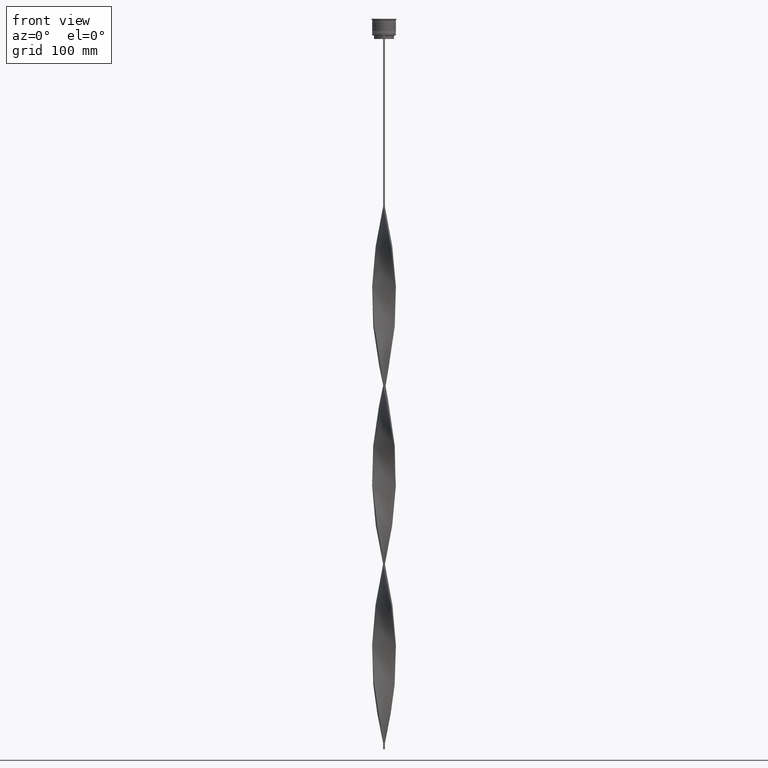
[diagram: clean part render]
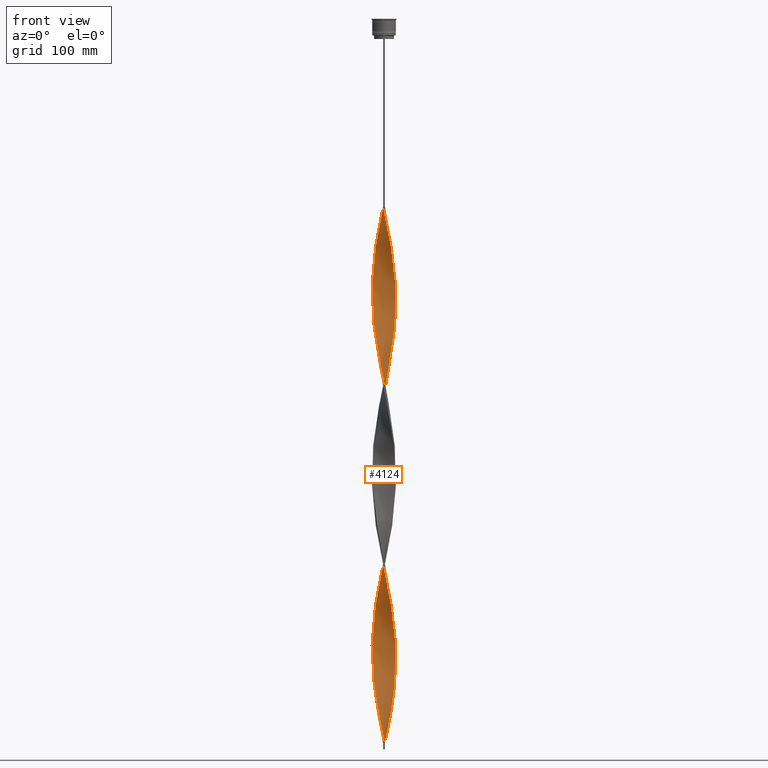
[diagram: same view with one face highlighted and labeled with its STEP entity id]
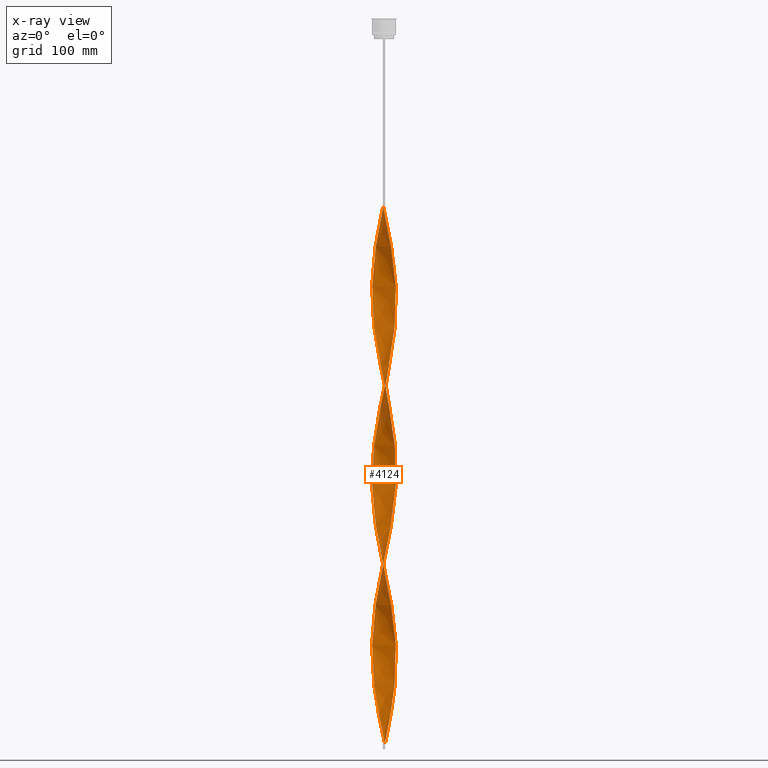
[diagram: x-ray of the same camera — body ghosted, the highlighted face saturated]
A machine part, front view. The second image highlights one B-rep face of the part: STEP entity #4124.
The next image is the same camera in x-ray: the body ghosted, the highlighted face saturated — about 0% of this face is hidden behind the body in this view.
In plain terms, the highlighted face is a freeform B-spline surface patch.
Its self-contained STEP definition (entity closure, byte-faithful):
#7 = CARTESIAN_POINT ( 'NONE',  ( -9.320399624033075980, 3.758279110105987808, -211.2430555555554861 ) ) ;
#18 = CARTESIAN_POINT ( 'NONE',  ( 6.192563292782590878, 7.914964995880699128, -580.8124999999998863 ) ) ;
#29 = CARTESIAN_POINT ( 'NONE',  ( -4.942682784217359071, -8.750108451655691510, -280.1458333333333144 ) ) ;
#41 = CARTESIAN_POINT ( 'NONE',  ( 9.975528918694863023, 1.217921924187931770, -543.2291666666665151 ) ) ;
#42 = CARTESIAN_POINT ( 'NONE',  ( -5.649519052838327227, 8.285254037844385522, -183.0555555555555145 ) ) ;
#52 = CARTESIAN_POINT ( 'NONE',  ( 0.7499999999999985567, -9.999999999999998224, -308.3333333333333712 ) ) ;
#58 = CARTESIAN_POINT ( 'NONE',  ( 8.390104474668897083, 5.492599284868780352, -264.4861111111110858 ) ) ;
#65 = CARTESIAN_POINT ( 'NONE',  ( -2.048845568230873049, 9.816553969573064364, -164.2638888888888857 ) ) ;
#80 = CARTESIAN_POINT ( 'NONE',  ( 8.030100497682088445, -6.042515785520206961, -349.0486111111110858 ) ) ;
#88 = CARTESIAN_POINT ( 'NONE',  ( 6.682629295305638095, 7.476962331155814212, -277.0138888888889142 ) ) ;
#93 = CARTESIAN_POINT ( 'NONE',  ( -6.042515785520205185, -8.030100497682088445, -273.8819444444443434 ) ) ;
#112 = CARTESIAN_POINT ( 'NONE',  ( 5.649519052838335220, 8.285254037844389075, -283.2777777777777146 ) ) ;
#114 = CARTESIAN_POINT ( 'NONE',  ( 0.7500000000000011102, 10.00000000000000533, -609.0000000000000000 ) ) ;
#116 = CARTESIAN_POINT ( 'NONE',  ( 0.09456537184761271142, -10.04915759711142798, -305.2013888888888573 ) ) ;
#120 = CARTESIAN_POINT ( 'NONE',  ( 7.038959666430926632, -7.172695297828685312, -198.7152777777777430 ) ) ;
#129 = CARTESIAN_POINT ( 'NONE',  ( 9.525807899386691702, 3.133924674267432486, -251.9583333333332860 ) ) ;
#135 = CARTESIAN_POINT ( 'NONE',  ( -9.682265536257560257, -2.692256508309361696, -242.5624999999999432 ) ) ;
#149 = CARTESIAN_POINT ( 'NONE',  ( 4.519743973034366036, 8.951782750839054614, -289.5416666666666288 ) ) ;
#159 = CARTESIAN_POINT ( 'NONE',  ( 8.951782750839051062, 4.519743973034356266, -402.2916666666666856 ) ) ;
#164 = CARTESIAN_POINT ( 'NONE',  ( 1.863746081308407687, -9.853372546717579894, -170.5277777777777430 ) ) ;
#165 = CARTESIAN_POINT ( 'NONE',  ( 6.682629295305628325, -7.476962331155812436, -339.6527777777777715 ) ) ;
#174 = CARTESIAN_POINT ( 'NONE',  ( 7.914964995880703569, -6.192563292782589990, -505.6458333333333712 ) ) ;
#181 = CARTESIAN_POINT ( 'NONE',  ( 8.750108451655687958, -4.942682784217363512, -355.3124999999999432 ) ) ;
#187 = CARTESIAN_POINT ( 'NONE',  ( 9.035254037844383745, -4.350480947161674550, -358.4444444444444571 ) ) ;
#200 = CARTESIAN_POINT ( 'NONE',  ( 9.731216174740296765, 2.509570238428878497, -549.4930555555553156 ) ) ;
#204 = CARTESIAN_POINT ( 'NONE',  ( -5.492599284868781240, -8.390104474668889978, -577.6805555555555429 ) ) ;
#210 = CARTESIAN_POINT ( 'NONE',  ( -9.525807899386691702, -3.133924674267428490, -402.2916666666666856 ) ) ;
#211 = CARTESIAN_POINT ( 'NONE',  ( 5.649519052838325450, -8.285254037844385522, -333.3888888888888573 ) ) ;
#223 = CARTESIAN_POINT ( 'NONE',  ( -9.731216174740296765, -2.509570238428879385, -399.1597222222221149 ) ) ;
#229 = CARTESIAN_POINT ( 'NONE',  ( 0.5616782761701681892, 10.01234325790314195, -452.4027777777777715 ) ) ;
#236 = CARTESIAN_POINT ( 'NONE',  ( -5.492599284868780352, 8.390104474668897083, -339.6527777777777715 ) ) ;
#238 = CARTESIAN_POINT ( 'NONE',  ( -9.999999999999998224, -0.7499999999999991118, -533.8333333333333712 ) ) ;
#249 = CARTESIAN_POINT ( 'NONE',  ( 9.975528918694864799, 1.217921924187931992, -543.2291666666665151 ) ) ;
#254 = CARTESIAN_POINT ( 'NONE',  ( -7.172695297828679983, 7.038959666430923079, -493.1180555555555429 ) ) ;
#259 = CARTESIAN_POINT ( 'NONE',  ( -3.758279110105986920, 9.320399624033083086, -330.2569444444443434 ) ) ;
#260 = CARTESIAN_POINT ( 'NONE',  ( -9.731216174740287883, 2.509570238428879385, -518.1736111111110858 ) ) ;
#269 = CARTESIAN_POINT ( 'NONE',  ( 1.217921924187935101, -9.975528918694866576, -468.0624999999999432 ) ) ;
#274 = CARTESIAN_POINT ( 'NONE',  ( -9.248022421870022214, -3.933013133174650289, -549.4930555555554292 ) ) ;
#279 = CARTESIAN_POINT ( 'NONE',  ( -4.942682784217356406, 8.750108451655700392, -336.5208333333332575 ) ) ;
#290 = CARTESIAN_POINT ( 'NONE',  ( -8.390104474668891754, 5.492599284868779463, -201.8472222222222001 ) ) ;
#305 = CARTESIAN_POINT ( 'NONE',  ( -3.312634820742017983, -9.465143979063794788, -446.1388888888888573 ) ) ;
#316 = CARTESIAN_POINT ( 'NONE',  ( -9.682265536257560257, -2.692256508309361696, -242.5624999999999147 ) ) ;
#320 = DIRECTION ( 'NONE',  ( 0.000000000000000000, 1.000000000000000000, 0.000000000000000000 ) ) ;
#326 = CARTESIAN_POINT ( 'NONE',  ( 3.758279110105988696, -9.320399624033083086, -480.5902777777776578 ) ) ;
#336 = CARTESIAN_POINT ( 'NONE',  ( -4.350480947161673662, -9.035254037844383745, -283.2777777777777146 ) ) ;
#340 = CARTESIAN_POINT ( 'NONE',  ( -0.7499999999999997780, -10.00000000000000533, -157.9999999999999716 ) ) ;
#344 = CARTESIAN_POINT ( 'NONE',  ( 6.540737725975569461, -7.601397897755390431, -496.2499999999999432 ) ) ;
#355 = CARTESIAN_POINT ( 'NONE',  ( -6.682629295305630102, 7.476962331155812436, -189.3194444444444287 ) ) ;
#361 = CARTESIAN_POINT ( 'NONE',  ( 0.7499999999999994449, -3.333333333333330373, -609.0000000000000000 ) ) ;
#364 = CARTESIAN_POINT ( 'NONE',  ( 9.035254037844392627, 4.350480947161671885, -558.8888888888889142 ) ) ;
#378 = CARTESIAN_POINT ( 'NONE',  ( -8.030100497682088445, 6.042515785520206073, -198.7152777777777430 ) ) ;
#387 = CARTESIAN_POINT ( 'NONE',  ( 0.5616782761701588633, -10.01234325790314905, -464.9305555555555429 ) ) ;
#398 = CARTESIAN_POINT ( 'NONE',  ( 3.133924674267438704, 9.525807899386681044, -439.8749999999999432 ) ) ;
#404 = CARTESIAN_POINT ( 'NONE',  ( 10.01234325790314905, 0.5616782761701568649, -239.4305555555555429 ) ) ;
#423 = CARTESIAN_POINT ( 'NONE',  ( -6.682629295305630102, 7.476962331155812436, -489.9861111111111427 ) ) ;
#429 = CARTESIAN_POINT ( 'NONE',  ( 3.933013133174656506, 9.248022421870029319, -292.6736111111110290 ) ) ;
#434 = CARTESIAN_POINT ( 'NONE',  ( 9.035254037844383745, -4.350480947161674550, -358.4444444444444571 ) ) ;
#441 = CARTESIAN_POINT ( 'NONE',  ( 4.942682784217358183, -8.750108451655696840, -186.1874999999999716 ) ) ;
#457 = CARTESIAN_POINT ( 'NONE',  ( 8.655543079808081686, -5.106474812894077786, -211.2430555555554861 ) ) ;
#461 = CARTESIAN_POINT ( 'NONE',  ( -5.492599284868781240, -8.390104474668889978, -277.0138888888889142 ) ) ;
#478 = CARTESIAN_POINT ( 'NONE',  ( 1.217921924187935101, -9.975528918694866576, -167.3958333333333144 ) ) ;
#482 = CARTESIAN_POINT ( 'NONE',  ( 9.999999999999998224, 0.7499999999999980016, -383.4999999999999432 ) ) ;
#496 = CARTESIAN_POINT ( 'NONE',  ( 7.601397897755390431, 6.540737725975568573, -270.7500000000000000 ) ) ;
#502 = CARTESIAN_POINT ( 'NONE',  ( -7.914964995880699128, -6.192563292782581996, -261.3541666666666856 ) ) ;
#507 = CARTESIAN_POINT ( 'NONE',  ( -8.750108451655689734, 4.942682784217357295, -505.6458333333333712 ) ) ;
#520 = CARTESIAN_POINT ( 'NONE',  ( -9.465143979063794788, 3.312634820742017538, -370.9722222222222285 ) ) ;
#528 = CARTESIAN_POINT ( 'NONE',  ( 7.476962331155815988, 6.682629295305624773, -414.8194444444444002 ) ) ;
#532 = CARTESIAN_POINT ( 'NONE',  ( -0.09456537184761737436, -10.04915759711143508, -161.1319444444444002 ) ) ;
#533 = CARTESIAN_POINT ( 'NONE',  ( 3.933013133174646736, -9.248022421870027543, -323.9930555555555429 ) ) ;
#543 = CARTESIAN_POINT ( 'NONE',  ( -9.525807899386691702, -3.133924674267428934, -402.2916666666666856 ) ) ;
#548 = CARTESIAN_POINT ( 'NONE',  ( -3.933013133174651621, 9.248022421870022214, -474.3263888888889142 ) ) ;
#553 = CARTESIAN_POINT ( 'NONE',  ( -9.248022421870027543, 3.933013133174656062, -367.8402777777777146 ) ) ;
#554 = CARTESIAN_POINT ( 'NONE',  ( -4.519743973034361595, 8.951782750839049285, -477.4583333333333144 ) ) ;
#563 = CARTESIAN_POINT ( 'NONE',  ( -10.01234325790314905, -0.5616782761701557547, -389.7638888888889142 ) ) ;
#568 = CARTESIAN_POINT ( 'NONE',  ( -8.390104474668891754, 5.492599284868779463, -502.5138888888889142 ) ) ;
#574 = CARTESIAN_POINT ( 'NONE',  ( 8.030100497682097327, 6.042515785520204297, -267.6180555555554861 ) ) ;
#575 = CARTESIAN_POINT ( 'NONE',  ( -8.655543079808076357, -5.106474812894071569, -555.7569444444444571 ) ) ;
#587 = CARTESIAN_POINT ( 'NONE',  ( 7.038959666430927520, -7.172695297828685312, -499.3819444444444002 ) ) ;
#594 = CARTESIAN_POINT ( 'NONE',  ( -8.285254037844385522, -5.649519052838325450, -558.8888888888889142 ) ) ;
#598 = CARTESIAN_POINT ( 'NONE',  ( 0.7499999999999985567, -9.999999999999998224, -609.0000000000000000 ) ) ;
#600 = CARTESIAN_POINT ( 'NONE',  ( -7.038959666430926632, 7.172695297828686201, -349.0486111111110858 ) ) ;
#602 = CARTESIAN_POINT ( 'NONE',  ( -4.942682784217359071, -8.750108451655691510, -580.8124999999998863 ) ) ;
#613 = CARTESIAN_POINT ( 'NONE',  ( -9.950842402888577354, 1.405434628152387511, -380.3680555555554861 ) ) ;
#622 = CARTESIAN_POINT ( 'NONE',  ( 9.816553969573071470, -2.048845568230875713, -226.9027777777777715 ) ) ;
#623 = CARTESIAN_POINT ( 'NONE',  ( -1.217921924187937321, -9.975528918694859470, -599.6041666666666288 ) ) ;
#634 = CARTESIAN_POINT ( 'NONE',  ( 3.312634820742012653, 9.465143979063796564, -596.4722222222222854 ) ) ;
#639 = CARTESIAN_POINT ( 'NONE',  ( -5.106474812894072457, 8.655543079808074580, -480.5902777777776578 ) ) ;
#645 = CARTESIAN_POINT ( 'NONE',  ( 0.7500000000000011102, 10.00000000000000533, -308.3333333333333712 ) ) ;
#659 = CARTESIAN_POINT ( 'NONE',  ( -9.816553969573064364, -2.048845568230871272, -239.4305555555555429 ) ) ;
#673 = CARTESIAN_POINT ( 'NONE',  ( 10.01234325790314905, 0.5616782761701567539, -540.0972222222221717 ) ) ;
#674 = CARTESIAN_POINT ( 'NONE',  ( -7.914964995880700016, -6.192563292782582884, -562.0208333333331439 ) ) ;
#683 = CARTESIAN_POINT ( 'NONE',  ( -4.519743973034361595, 8.951782750839049285, -176.7916666666666572 ) ) ;
#687 = FACE_OUTER_BOUND ( 'NONE', #1921, .T. ) ;
#694 = CARTESIAN_POINT ( 'NONE',  ( 9.853372546717579894, 1.863746081308406799, -546.3611111111110858 ) ) ;
#695 = CARTESIAN_POINT ( 'NONE',  ( -3.312634820742007769, 9.465143979063791235, -170.5277777777777430 ) ) ;
#704 = CARTESIAN_POINT ( 'NONE',  ( 1.405434628152387067, 9.950842402888577354, -605.8680555555556566 ) ) ;
#713 = CARTESIAN_POINT ( 'NONE',  ( -3.933013133174656950, -9.248022421870027543, -443.0069444444444002 ) ) ;
#724 = CARTESIAN_POINT ( 'NONE',  ( -9.950842402888570248, -1.405434628152380183, -236.2986111111110574 ) ) ;
#733 = CARTESIAN_POINT ( 'NONE',  ( 1.405434628152387289, 9.950842402888575577, -605.8680555555555429 ) ) ;
#747 = CARTESIAN_POINT ( 'NONE',  ( 6.042515785520210514, 8.030100497682084892, -424.2152777777777146 ) ) ;
#760 = CARTESIAN_POINT ( 'NONE',  ( -6.192563292782595319, -7.914964995880695575, -430.4791666666666288 ) ) ;
#771 = CARTESIAN_POINT ( 'NONE',  ( 9.682265536257562033, 2.692256508309355922, -392.8958333333332575 ) ) ;
#779 = CARTESIAN_POINT ( 'NONE',  ( 9.853372546717579894, 1.863746081308407021, -245.6944444444444287 ) ) ;
#789 = CARTESIAN_POINT ( 'NONE',  ( 1.217921924187934879, -9.975528918694864799, -167.3958333333332860 ) ) ;
#795 = CARTESIAN_POINT ( 'NONE',  ( 9.248022421870022214, 3.933013133174651177, -399.1597222222221149 ) ) ;
#802 = CARTESIAN_POINT ( 'NONE',  ( 7.914964995880703569, -6.192563292782589990, -204.9791666666666288 ) ) ;
#810 = CARTESIAN_POINT ( 'NONE',  ( 9.853372546717571012, -1.863746081308413904, -370.9722222222222285 ) ) ;
#828 = CARTESIAN_POINT ( 'NONE',  ( 5.492599284868782128, -8.390104474668898860, -189.3194444444444287 ) ) ;
#833 = CARTESIAN_POINT ( 'NONE',  ( 3.312634820742003772, -9.465143979063794788, -320.8611111111110858 ) ) ;
#848 = CARTESIAN_POINT ( 'NONE',  ( 4.350480947161672773, -9.035254037844392627, -183.0555555555555145 ) ) ;
#852 = CARTESIAN_POINT ( 'NONE',  ( -4.942682784217359071, -8.750108451655691510, -280.1458333333333144 ) ) ;
#868 = CARTESIAN_POINT ( 'NONE',  ( 10.04915759711143508, -0.09456537184761855397, -236.2986111111110574 ) ) ;
#873 = CARTESIAN_POINT ( 'NONE',  ( 5.649519052838325450, -8.285254037844385522, -333.3888888888888573 ) ) ;
#877 = CARTESIAN_POINT ( 'NONE',  ( 9.731216174740287883, -2.509570238428880273, -367.8402777777777146 ) ) ;
#894 = CARTESIAN_POINT ( 'NONE',  ( 2.509570238428880273, -9.731216174740296765, -474.3263888888889142 ) ) ;
#903 = CARTESIAN_POINT ( 'NONE',  ( 6.192563292782581996, -7.914964995880699128, -336.5208333333332575 ) ) ;
#909 = CARTESIAN_POINT ( 'NONE',  ( 4.519743973034366036, 8.951782750839054614, -289.5416666666666288 ) ) ;
#910 = CARTESIAN_POINT ( 'NONE',  ( 1.217921924187938432, 9.975528918694857694, -449.2708333333333712 ) ) ;
#922 = CARTESIAN_POINT ( 'NONE',  ( 4.350480947161672773, -9.035254037844392627, -483.7222222222222285 ) ) ;
#928 = CARTESIAN_POINT ( 'NONE',  ( -1.863746081308408575, -9.853372546717571012, -596.4722222222222854 ) ) ;
#932 = CARTESIAN_POINT ( 'NONE',  ( 9.525807899386691702, 3.133924674267432042, -251.9583333333332860 ) ) ;
#933 = CARTESIAN_POINT ( 'NONE',  ( -9.465143979063791235, -3.312634820742006880, -546.3611111111110858 ) ) ;
#942 = CARTESIAN_POINT ( 'NONE',  ( 9.465143979063796564, -3.312634820742011765, -521.3055555555554292 ) ) ;
#948 = CARTESIAN_POINT ( 'NONE',  ( -2.048845568230873049, 9.816553969573064364, -464.9305555555555429 ) ) ;
#955 = CARTESIAN_POINT ( 'NONE',  ( -7.476962331155813324, 6.682629295305638095, -352.1805555555554861 ) ) ;
#967 = CARTESIAN_POINT ( 'NONE',  ( -3.312634820742017983, -9.465143979063794788, -446.1388888888888573 ) ) ;
#978 = CARTESIAN_POINT ( 'NONE',  ( 9.975528918694863023, 1.217921924187931770, -242.5624999999999432 ) ) ;
#980 = CARTESIAN_POINT ( 'NONE',  ( -9.248022421870022214, -3.933013133174650289, -549.4930555555553156 ) ) ;
#991 = CARTESIAN_POINT ( 'NONE',  ( -5.106474812894072457, 8.655543079808076357, -179.9236111111110574 ) ) ;
#996 = CARTESIAN_POINT ( 'NONE',  ( -8.030100497682088445, 6.042515785520205185, -499.3819444444444002 ) ) ;
#1001 = CARTESIAN_POINT ( 'NONE',  ( 2.692256508309370133, 9.682265536257565586, -298.9374999999999432 ) ) ;
#1002 = CARTESIAN_POINT ( 'NONE',  ( -8.951782750839049285, -4.519743973034358930, -552.6249999999998863 ) ) ;
#1014 = CARTESIAN_POINT ( 'NONE',  ( -2.048845568230873049, 9.816553969573064364, -164.2638888888888857 ) ) ;
#1020 = CARTESIAN_POINT ( 'NONE',  ( -9.731216174740287883, 2.509570238428879385, -518.1736111111110858 ) ) ;
#1024 = CARTESIAN_POINT ( 'NONE',  ( 9.682265536257565586, -2.692256508309367469, -524.4375000000000000 ) ) ;
#1035 = CARTESIAN_POINT ( 'NONE',  ( -7.914964995880700016, -6.192563292782582884, -261.3541666666666856 ) ) ;
#1049 = CARTESIAN_POINT ( 'NONE',  ( -9.975528918694857694, 1.217921924187934213, -223.7708333333332860 ) ) ;
#1059 = CARTESIAN_POINT ( 'NONE',  ( -1.863746081308408575, -9.853372546717571012, -295.8055555555555429 ) ) ;
#1072 = CARTESIAN_POINT ( 'NONE',  ( 9.248022421870027543, -3.933013133174655174, -518.1736111111110858 ) ) ;
#1073 = CARTESIAN_POINT ( 'NONE',  ( -9.999999999999998224, -0.7499999999999991118, -233.1666666666666288 ) ) ;
#1082 = CARTESIAN_POINT ( 'NONE',  ( -10.01234325790314195, 0.5616782761701593074, -226.9027777777777715 ) ) ;
#1089 = CARTESIAN_POINT ( 'NONE',  ( 3.312634820742012653, 9.465143979063796564, -596.4722222222222854 ) ) ;
#1101 = CARTESIAN_POINT ( 'NONE',  ( 8.750108451655687958, -4.942682784217363512, -355.3124999999998863 ) ) ;
#1113 = CARTESIAN_POINT ( 'NONE',  ( 5.492599284868782128, -8.390104474668898860, -489.9861111111111427 ) ) ;
#1114 = CARTESIAN_POINT ( 'NONE',  ( -8.390104474668891754, 5.492599284868779463, -201.8472222222222001 ) ) ;
#1128 = CARTESIAN_POINT ( 'NONE',  ( 8.285254037844389075, 5.649519052838321009, -408.5555555555555429 ) ) ;
#1134 = CARTESIAN_POINT ( 'NONE',  ( 3.758279110105988696, -9.320399624033084862, -179.9236111111110574 ) ) ;
#1149 = CARTESIAN_POINT ( 'NONE',  ( 4.519743973034357154, -8.951782750839051062, -327.1250000000000000 ) ) ;
#1157 = CARTESIAN_POINT ( 'NONE',  ( -4.350480947161671885, 9.035254037844394404, -333.3888888888888573 ) ) ;
#1161 = CARTESIAN_POINT ( 'NONE',  ( 8.030100497682088445, -6.042515785520206073, -349.0486111111110858 ) ) ;
#1177 = CARTESIAN_POINT ( 'NONE',  ( 9.035254037844392627, 4.350480947161671885, -258.2222222222221717 ) ) ;
#1184 = CARTESIAN_POINT ( 'NONE',  ( -1.217921924187937099, -9.975528918694857694, -298.9374999999999432 ) ) ;
#1202 = CARTESIAN_POINT ( 'NONE',  ( -6.042515785520205185, 8.030100497682097327, -342.7847222222222285 ) ) ;
#1208 = CARTESIAN_POINT ( 'NONE',  ( -8.655543079808074580, -5.106474812894071569, -255.0902777777777146 ) ) ;
#1214 = CARTESIAN_POINT ( 'NONE',  ( 7.914964995880702681, -6.192563292782589990, -204.9791666666666288 ) ) ;
#1215 = ORIENTED_EDGE ( 'NONE', *, *, #4012, .T. ) ;
#1222 = CARTESIAN_POINT ( 'NONE',  ( 9.465143979063796564, -3.312634820742011765, -220.6388888888888857 ) ) ;
#1228 = CARTESIAN_POINT ( 'NONE',  ( -3.758279110105989584, -9.320399624033075980, -286.4097222222221717 ) ) ;
#1232 = CARTESIAN_POINT ( 'NONE',  ( 2.509570238428881161, 9.731216174740287883, -443.0069444444444002 ) ) ;
#1243 = CARTESIAN_POINT ( 'NONE',  ( 8.285254037844389075, -5.649519052838332556, -508.7777777777777715 ) ) ;
#1248 = CARTESIAN_POINT ( 'NONE',  ( 4.942682784217363512, 8.750108451655687958, -430.4791666666666288 ) ) ;
#1252 = CARTESIAN_POINT ( 'NONE',  ( 3.933013133174656062, 9.248022421870027543, -292.6736111111110858 ) ) ;
#1253 = CARTESIAN_POINT ( 'NONE',  ( 9.950842402888573801, 1.405434628152374854, -386.6319444444444571 ) ) ;
#1268 = CARTESIAN_POINT ( 'NONE',  ( -9.853372546717578118, -1.863746081308403246, -396.0277777777777715 ) ) ;
#1273 = CARTESIAN_POINT ( 'NONE',  ( -2.509570238428880273, -9.731216174740287883, -593.3402777777777146 ) ) ;
#1278 = CARTESIAN_POINT ( 'NONE',  ( -7.914964995880697352, 6.192563292782595319, -355.3124999999999432 ) ) ;
#1290 = CARTESIAN_POINT ( 'NONE',  ( -5.649519052838336108, -8.285254037844387298, -433.6111111111110858 ) ) ;
#1296 = CARTESIAN_POINT ( 'NONE',  ( -7.038959666430926632, -7.172695297828676431, -568.2847222222221717 ) ) ;
#1301 = CARTESIAN_POINT ( 'NONE',  ( -8.285254037844389075, 5.649519052838336108, -358.4444444444444571 ) ) ;
#1302 = CARTESIAN_POINT ( 'NONE',  ( -3.758279110105989584, -9.320399624033075980, -587.0763888888889142 ) ) ;
#1313 = CARTESIAN_POINT ( 'NONE',  ( -9.035254037844394404, -4.350480947161667444, -408.5555555555555429 ) ) ;
#1325 = CARTESIAN_POINT ( 'NONE',  ( 2.048845568230878378, 9.816553969573071470, -302.0694444444444002 ) ) ;
#1326 = CARTESIAN_POINT ( 'NONE',  ( -6.042515785520206073, -8.030100497682088445, -574.5486111111111995 ) ) ;
#1338 = CARTESIAN_POINT ( 'NONE',  ( 3.133924674267435151, -9.525807899386689925, -477.4583333333333144 ) ) ;
#1344 = CARTESIAN_POINT ( 'NONE',  ( -7.476962331155812436, -6.682629295305628325, -565.1527777777778283 ) ) ;
#1350 = CARTESIAN_POINT ( 'NONE',  ( 3.312634820742012653, 9.465143979063796564, -295.8055555555555429 ) ) ;
#1351 = CARTESIAN_POINT ( 'NONE',  ( -9.950842402888570248, -1.405434628152380183, -536.9652777777778283 ) ) ;
#1359 = CARTESIAN_POINT ( 'NONE',  ( -7.172695297828679983, 7.038959666430923967, -192.4513888888888289 ) ) ;
#1366 = CARTESIAN_POINT ( 'NONE',  ( -6.682629295305630102, 7.476962331155812436, -489.9861111111111427 ) ) ;
#1370 = CARTESIAN_POINT ( 'NONE',  ( 2.692256508309370133, 9.682265536257565586, -599.6041666666666288 ) ) ;
#1371 = CARTESIAN_POINT ( 'NONE',  ( -7.476962331155812436, -6.682629295305628325, -565.1527777777778283 ) ) ;
#1373 = VERTEX_POINT ( 'NONE', #598 ) ;
#1383 = CARTESIAN_POINT ( 'NONE',  ( 8.390104474668897083, 5.492599284868780352, -565.1527777777778283 ) ) ;
#1392 = CARTESIAN_POINT ( 'NONE',  ( 9.816553969573071470, -2.048845568230875713, -527.5694444444444571 ) ) ;
#1404 = CARTESIAN_POINT ( 'NONE',  ( -2.509570238428880273, -9.731216174740287883, -292.6736111111110290 ) ) ;
#1415 = CARTESIAN_POINT ( 'NONE',  ( 7.172695297828685312, 7.038959666430926632, -574.5486111111110858 ) ) ;
#1416 = CARTESIAN_POINT ( 'NONE',  ( -1.405434628152381515, 9.950842402888570248, -161.1319444444444002 ) ) ;
#1425 = CARTESIAN_POINT ( 'NONE',  ( 7.172695297828685312, 7.038959666430927520, -574.5486111111111995 ) ) ;
#1436 = CARTESIAN_POINT ( 'NONE',  ( 8.951782750839054614, -4.519743973034365148, -515.0416666666666288 ) ) ;
#1447 = CARTESIAN_POINT ( 'NONE',  ( 8.030100497682097327, 6.042515785520205185, -568.2847222222220580 ) ) ;
#1459 = CARTESIAN_POINT ( 'NONE',  ( 9.525807899386691702, 3.133924674267432042, -552.6249999999998863 ) ) ;
#1460 = CARTESIAN_POINT ( 'NONE',  ( -6.192563292782584661, 7.914964995880697352, -186.1874999999999716 ) ) ;
#1471 = CARTESIAN_POINT ( 'NONE',  ( 9.320399624033075980, -3.758279110105986032, -361.5763888888888005 ) ) ;
#1478 = CARTESIAN_POINT ( 'NONE',  ( 5.106474812894080451, 8.655543079808079909, -286.4097222222221717 ) ) ;
#1484 = CARTESIAN_POINT ( 'NONE',  ( -8.030100497682088445, 6.042515785520205185, -198.7152777777777430 ) ) ;
#1497 = CARTESIAN_POINT ( 'NONE',  ( 3.312634820742003772, -9.465143979063794788, -320.8611111111110858 ) ) ;
#1504 = CARTESIAN_POINT ( 'NONE',  ( -1.217921924187931548, 9.975528918694864799, -317.7291666666665151 ) ) ;
#1508 = CARTESIAN_POINT ( 'NONE',  ( -2.509570238428880273, -9.731216174740287883, -292.6736111111110858 ) ) ;
#1526 = CARTESIAN_POINT ( 'NONE',  ( 2.048845568230878378, 9.816553969573071470, -302.0694444444444002 ) ) ;
#1531 = CARTESIAN_POINT ( 'NONE',  ( 9.682265536257562033, 2.692256508309355922, -392.8958333333332575 ) ) ;
#1548 = CARTESIAN_POINT ( 'NONE',  ( -3.133924674267428934, 9.525807899386691702, -327.1250000000000000 ) ) ;
#1555 = CARTESIAN_POINT ( 'NONE',  ( -9.248022421870022214, -3.933013133174650289, -248.8263888888888289 ) ) ;
#1560 = CARTESIAN_POINT ( 'NONE',  ( 6.042515785520208738, -8.030100497682095551, -192.4513888888888289 ) ) ;
#1572 = CARTESIAN_POINT ( 'NONE',  ( 0.5616782761701589743, -10.01234325790314905, -164.2638888888888857 ) ) ;
#1578 = CARTESIAN_POINT ( 'NONE',  ( 8.655543079808074580, 5.106474812894070681, -405.4236111111110858 ) ) ;
#1584 = CARTESIAN_POINT ( 'NONE',  ( 1.405434628152379739, -9.950842402888570248, -311.4652777777776578 ) ) ;
#1592 = CARTESIAN_POINT ( 'NONE',  ( 4.942682784217358183, -8.750108451655696840, -486.8541666666665719 ) ) ;
#1599 = CARTESIAN_POINT ( 'NONE',  ( 6.540737725975565020, 7.601397897755383326, -421.0833333333333144 ) ) ;
#1604 = CARTESIAN_POINT ( 'NONE',  ( -8.750108451655700392, -4.942682784217355518, -411.6875000000000000 ) ) ;
#1605 = CARTESIAN_POINT ( 'NONE',  ( 2.692256508309361251, -9.682265536257560257, -317.7291666666665151 ) ) ;
#1618 = CARTESIAN_POINT ( 'NONE',  ( 9.525807899386691702, 3.133924674267432486, -552.6249999999998863 ) ) ;
#1623 = CARTESIAN_POINT ( 'NONE',  ( -3.312634820742007769, 9.465143979063791235, -471.1944444444444002 ) ) ;
#1627 = CARTESIAN_POINT ( 'NONE',  ( 9.682265536257565586, -2.692256508309367469, -223.7708333333332860 ) ) ;
#1629 = CARTESIAN_POINT ( 'NONE',  ( 8.390104474668889978, -5.492599284868781240, -352.1805555555554861 ) ) ;
#1642 = CARTESIAN_POINT ( 'NONE',  ( 10.04915759711143508, -0.09456537184761855397, -536.9652777777778283 ) ) ;
#1648 = CARTESIAN_POINT ( 'NONE',  ( -6.192563292782584661, 7.914964995880697352, -486.8541666666665719 ) ) ;
#1649 = ORIENTED_EDGE ( 'NONE', *, *, #3833, .F. ) ;
#1652 = CARTESIAN_POINT ( 'NONE',  ( -9.465143979063794788, 3.312634820742017538, -370.9722222222222285 ) ) ;
#1664 = CARTESIAN_POINT ( 'NONE',  ( -8.030100497682097327, -6.042515785520205185, -417.9513888888888005 ) ) ;
#1669 = CARTESIAN_POINT ( 'NONE',  ( -9.320399624033075980, 3.758279110105987808, -511.9097222222220580 ) ) ;
#1673 = CARTESIAN_POINT ( 'NONE',  ( 7.172695297828685312, 7.038959666430926632, -273.8819444444443434 ) ) ;
#1684 = CARTESIAN_POINT ( 'NONE',  ( 6.042515785520209626, -8.030100497682095551, -493.1180555555555998 ) ) ;
#1695 = CARTESIAN_POINT ( 'NONE',  ( -9.320399624033083086, -3.758279110105986032, -405.4236111111110858 ) ) ;
#1708 = CARTESIAN_POINT ( 'NONE',  ( -8.285254037844385522, -5.649519052838325450, -258.2222222222221717 ) ) ;
#1717 = CARTESIAN_POINT ( 'NONE',  ( 2.509570238428881161, 9.731216174740287883, -443.0069444444444002 ) ) ;
#1723 = CARTESIAN_POINT ( 'NONE',  ( 8.030100497682097327, 6.042515785520204297, -568.2847222222221717 ) ) ;
#1725 = ORIENTED_EDGE ( 'NONE', *, *, #2643, .F. ) ;
#1734 = CARTESIAN_POINT ( 'NONE',  ( -5.492599284868781240, -8.390104474668889978, -277.0138888888889142 ) ) ;
#1742 = CARTESIAN_POINT ( 'NONE',  ( -7.172695297828689753, -7.038959666430923079, -424.2152777777777146 ) ) ;
#1743 = CARTESIAN_POINT ( 'NONE',  ( -3.933013133174651621, 9.248022421870022214, -173.6597222222221717 ) ) ;
#1754 = CARTESIAN_POINT ( 'NONE',  ( -3.758279110105989584, -9.320399624033075980, -286.4097222222221717 ) ) ;
#1763 = CARTESIAN_POINT ( 'NONE',  ( 5.649519052838335220, 8.285254037844389075, -583.9444444444443434 ) ) ;
#1778 = CARTESIAN_POINT ( 'NONE',  ( -9.731216174740287883, 2.509570238428879385, -217.5069444444443718 ) ) ;
#1790 = CARTESIAN_POINT ( 'NONE',  ( 1.217921924187934879, -9.975528918694864799, -468.0624999999999432 ) ) ;
#1802 = CARTESIAN_POINT ( 'NONE',  ( -9.999999999999998224, -0.7499999999999991118, -233.1666666666666288 ) ) ;
#1814 = CARTESIAN_POINT ( 'NONE',  ( -5.106474812894084891, -8.655543079808072804, -436.7430555555554861 ) ) ;
#1824 = CARTESIAN_POINT ( 'NONE',  ( -3.312634820742007769, 9.465143979063791235, -471.1944444444444002 ) ) ;
#1831 = CARTESIAN_POINT ( 'NONE',  ( 4.942682784217358183, -8.750108451655696840, -186.1875000000000000 ) ) ;
#1836 =( BOUNDED_CURVE ( )  B_SPLINE_CURVE ( 2, ( #2240, #532, #2262, #789, #164, #3643, #3663, #3620, #3317, #441, #3280, #1560, #2925, #120, #4383, #1214, #2624, #4034, #1931, #3090, #4175, #1627, #622, #3069, #2421, #3113, #4103, #978, #4491, #2664, #932, #2356, #3755, #4447, #4515, #574, #2400, #1673, #2004, #3040, #4126, #3414, #909, #1252, #1350, #1001, #1325, #2333, #645, #2762, #3733, #3460, #4422, #3439, #1982, #259, #2735, #279, #236, #3799, #4471, #600, #955, #1278, #1301, #2052, #3820, #553, #1652, #2690, #2377, #2031, #4152, #2712, #2073, #4080, #3388, #3774, #210, #1695, #3481, #1604, #3013, #2783, #2160, #1742, #3521, #760, #2828, #1814, #2186, #713, #305, #3566, #3866, #2526, #2138, #3503, #387, #1790, #2869, #2483, #2500, #326, #3935, #3137, #1113, #2465, #344, #4536, #3224, #4263, #3157, #4555, #1436, #1072, #4195, #1024, #1392, #2118, #3906, #3542, #673, #41, #694, #4242, #1459, #3885, #364, #4576, #3204, #1723, #2099, #1415, #4285, #18, #1763, #2848, #2803, #2441, #1089, #1370, #4216, #733, #3841 ),
 .UNSPECIFIED., .F., .T. ) 
 B_SPLINE_CURVE_WITH_KNOTS ( ( 3, 2, 2, 2, 2, 2, 2, 2, 2, 2, 2, 2, 2, 2, 2, 2, 2, 2, 2, 2, 2, 2, 2, 2, 2, 2, 2, 2, 2, 2, 2, 2, 2, 2, 2, 2, 2, 2, 2, 2, 2, 2, 2, 2, 2, 2, 2, 2, 2, 2, 2, 2, 2, 2, 2, 2, 2, 2, 2, 2, 2, 2, 2, 2, 2, 2, 2, 2, 2, 2, 2, 2, 3 ),
 ( 0.000000000000000000, 0.01041666666666666609, 0.02083333333333333218, 0.03125000000000000000, 0.04166666666666666435, 0.05208333333333333565, 0.06250000000000000000, 0.07291666666666667129, 0.08333333333333332871, 0.09375000000000000000, 0.1041666666666666713, 0.1145833333333333287, 0.1250000000000000000, 0.1354166666666666574, 0.1458333333333333426, 0.1562500000000000000, 0.1666666666666666574, 0.1770833333333333426, 0.1875000000000000000, 0.1979166666666666574, 0.2083333333333333426, 0.2187500000000000000, 0.2291666666666666574, 0.2395833333333333426, 0.2500000000000000000, 0.2604166666666666852, 0.2708333333333333148, 0.2812500000000000000, 0.2916666666666666852, 0.3020833333333333148, 0.3125000000000000000, 0.3229166666666666852, 0.3333333333333333148, 0.3437500000000000000, 0.3541666666666666852, 0.3645833333333333148, 0.3750000000000000000, 0.3854166666666666852, 0.3958333333333333148, 0.4062500000000000000, 0.4166666666666666852, 0.4270833333333333148, 0.4375000000000000000, 0.4479166666666666852, 0.4583333333333333148, 0.4687500000000000000, 0.4791666666666666852, 0.4895833333333333148, 0.5000000000000000000, 0.5104166666666666297, 0.5208333333333333703, 0.5312500000000000000, 0.5416666666666666297, 0.5520833333333333703, 0.5625000000000000000, 0.5729166666666666297, 0.5833333333333333703, 0.5937500000000000000, 0.6041666666666666297, 0.6145833333333333703, 0.6250000000000000000, 0.6354166666666666297, 0.6458333333333333703, 0.6562500000000000000, 0.6666666666666666297, 0.6770833333333333703, 0.6875000000000000000, 0.6979166666666666297, 0.7083333333333333703, 0.7187500000000000000, 0.7291666666666666297, 0.7395833333333333703, 0.7500000000000000000 ),
 .UNSPECIFIED. ) 
 CURVE ( )  GEOMETRIC_REPRESENTATION_ITEM ( )  RATIONAL_B_SPLINE_CURVE ( ( 1.000000000000000000, 0.9978589232386034791, 1.000000000000000000, 0.9978589232386034791, 1.000000000000000000, 0.9978589232386034791, 1.000000000000000000, 0.9978589232386034791, 1.000000000000000000, 0.9978589232386034791, 1.000000000000000000, 0.9978589232386034791, 1.000000000000000000, 0.9978589232386034791, 1.000000000000000000, 0.9978589232386034791, 1.000000000000000000, 0.9978589232386034791, 1.000000000000000000, 0.9978589232386034791, 1.000000000000000000, 0.9978589232386034791, 1.000000000000000000, 0.9978589232386034791, 1.000000000000000000, 0.9978589232386034791, 1.000000000000000000, 0.9978589232386034791, 1.000000000000000000, 0.9978589232386034791, 1.000000000000000000, 0.9978589232386034791, 1.000000000000000000, 0.9978589232386034791, 1.000000000000000000, 0.9978589232386034791, 1.000000000000000000, 0.9978589232386034791, 1.000000000000000000, 0.9978589232386034791, 1.000000000000000000, 0.9978589232386034791, 1.000000000000000000, 0.9978589232386034791, 1.000000000000000000, 0.9978589232386034791, 1.000000000000000000, 0.9978589232386034791, 1.000000000000000000, 0.9978589232386034791, 1.000000000000000000, 0.9978589232386034791, 1.000000000000000000, 0.9978589232386034791, 1.000000000000000000, 0.9978589232386034791, 1.000000000000000000, 0.9978589232386034791, 1.000000000000000000, 0.9978589232386034791, 1.000000000000000000, 0.9978589232386034791, 1.000000000000000000, 0.9978589232386034791, 1.000000000000000000, 0.9978589232386034791, 1.000000000000000000, 0.9978589232386034791, 1.000000000000000000, 0.9978589232386034791, 1.000000000000000000, 0.9978589232386034791, 1.000000000000000000, 0.9978589232386034791, 1.000000000000000000, 0.9978589232386034791, 1.000000000000000000, 0.9978589232386034791, 1.000000000000000000, 0.9978589232386034791, 1.000000000000000000, 0.9978589232386034791, 1.000000000000000000, 0.9978589232386034791, 1.000000000000000000, 0.9978589232386034791, 1.000000000000000000, 0.9978589232386034791, 1.000000000000000000, 0.9978589232386034791, 1.000000000000000000, 0.9978589232386034791, 1.000000000000000000, 0.9978589232386034791, 1.000000000000000000, 0.9978589232386034791, 1.000000000000000000, 0.9978589232386034791, 1.000000000000000000, 0.9978589232386034791, 1.000000000000000000, 0.9978589232386034791, 1.000000000000000000, 0.9978589232386034791, 1.000000000000000000, 0.9978589232386034791, 1.000000000000000000, 0.9978589232386034791, 1.000000000000000000, 0.9978589232386034791, 1.000000000000000000, 0.9978589232386034791, 1.000000000000000000, 0.9978589232386034791, 1.000000000000000000, 0.9978589232386034791, 1.000000000000000000, 0.9978589232386034791, 1.000000000000000000, 0.9978589232386034791, 1.000000000000000000, 0.9978589232386034791, 1.000000000000000000, 0.9978589232386034791, 1.000000000000000000, 0.9978589232386034791, 1.000000000000000000, 0.9978589232386034791, 1.000000000000000000, 0.9978589232386034791, 1.000000000000000000, 0.9978589232386034791, 1.000000000000000000, 0.9978589232386034791, 1.000000000000000000, 0.9978589232386034791, 1.000000000000000000, 0.9978589232386034791, 1.000000000000000000, 0.9978589232386034791, 1.000000000000000000, 0.9978589232386034791, 1.000000000000000000, 0.9978589232386034791, 1.000000000000000000 ) ) 
 REPRESENTATION_ITEM ( '' )  );
#1850 = CARTESIAN_POINT ( 'NONE',  ( -5.106474812894072457, 8.655543079808076357, -480.5902777777776578 ) ) ;
#1856 = CARTESIAN_POINT ( 'NONE',  ( 9.950842402888577354, -1.405434628152383958, -230.0347222222222001 ) ) ;
#1862 = CARTESIAN_POINT ( 'NONE',  ( 9.320399624033075980, -3.758279110105986032, -361.5763888888888005 ) ) ;
#1879 = CARTESIAN_POINT ( 'NONE',  ( -7.038959666430927520, 7.172695297828686201, -349.0486111111110858 ) ) ;
#1883 = CARTESIAN_POINT ( 'NONE',  ( 3.933013133174646736, -9.248022421870025767, -323.9930555555555998 ) ) ;
#1900 = CARTESIAN_POINT ( 'NONE',  ( 0.09456537184761920622, 10.04915759711143508, -311.4652777777776578 ) ) ;
#1905 = CARTESIAN_POINT ( 'NONE',  ( -6.540737725975564132, -7.601397897755384214, -270.7500000000000000 ) ) ;
#1919 = CARTESIAN_POINT ( 'NONE',  ( 3.133924674267435151, -9.525807899386689925, -176.7916666666666572 ) ) ;
#1921 = EDGE_LOOP ( 'NONE', ( #1215, #1978, #1725, #1649 ) ) ;
#1927 = CARTESIAN_POINT ( 'NONE',  ( 2.692256508309361251, -9.682265536257560257, -317.7291666666665719 ) ) ;
#1931 = CARTESIAN_POINT ( 'NONE',  ( 8.951782750839054614, -4.519743973034365148, -214.3749999999999716 ) ) ;
#1932 = CARTESIAN_POINT ( 'NONE',  ( 9.975528918694857694, -1.217921924187937988, -374.1041666666665719 ) ) ;
#1936 = B_SPLINE_CURVE_WITH_KNOTS ( 'NONE', 3,
 ( #114, #2498, #361, #3904 ),
 .UNSPECIFIED., .F., .F.,
 ( 4, 4 ),
 ( 0.000000000000000000, 1.000000000000000000 ),
 .UNSPECIFIED. ) ;
#1946 = CARTESIAN_POINT ( 'NONE',  ( -7.172695297828689753, -7.038959666430923967, -424.2152777777777146 ) ) ;
#1953 = CARTESIAN_POINT ( 'NONE',  ( 7.038959666430926632, 7.172695297828674654, -417.9513888888888573 ) ) ;
#1960 = CARTESIAN_POINT ( 'NONE',  ( -0.7499999999999997780, 9.999999999999998224, -458.6666666666666856 ) ) ;
#1970 = CARTESIAN_POINT ( 'NONE',  ( 9.853372546717579894, 1.863746081308407021, -546.3611111111110858 ) ) ;
#1975 = CARTESIAN_POINT ( 'NONE',  ( -9.999999999999998224, -0.7499999999999991118, -533.8333333333333712 ) ) ;
#1978 = ORIENTED_EDGE ( 'NONE', *, *, #4399, .T. ) ;
#1982 = CARTESIAN_POINT ( 'NONE',  ( -3.133924674267428934, 9.525807899386691702, -327.1250000000000000 ) ) ;
#1983 = CARTESIAN_POINT ( 'NONE',  ( 6.192563292782582884, -7.914964995880700016, -336.5208333333332575 ) ) ;
#1993 = CARTESIAN_POINT ( 'NONE',  ( -10.04915759711143508, 0.09456537184762441040, -386.6319444444444571 ) ) ;
#1999 = CARTESIAN_POINT ( 'NONE',  ( -4.350480947161673662, -9.035254037844383745, -583.9444444444443434 ) ) ;
#2004 = CARTESIAN_POINT ( 'NONE',  ( 6.682629295305638095, 7.476962331155813324, -277.0138888888889142 ) ) ;
#2020 = CARTESIAN_POINT ( 'NONE',  ( 9.816553969573071470, -2.048845568230875269, -527.5694444444444571 ) ) ;
#2031 = CARTESIAN_POINT ( 'NONE',  ( -9.950842402888575577, 1.405434628152387955, -380.3680555555554861 ) ) ;
#2044 = CARTESIAN_POINT ( 'NONE',  ( -4.519743973034370477, -8.951782750839052838, -439.8749999999999432 ) ) ;
#2048 = CARTESIAN_POINT ( 'NONE',  ( -1.405434628152381515, 9.950842402888570248, -461.7986111111110290 ) ) ;
#2052 = CARTESIAN_POINT ( 'NONE',  ( -8.655543079808079909, 5.106474812894076010, -361.5763888888888005 ) ) ;
#2062 = CARTESIAN_POINT ( 'NONE',  ( -8.655543079808076357, -5.106474812894071569, -255.0902777777776862 ) ) ;
#2067 = CARTESIAN_POINT ( 'NONE',  ( -9.525807899386684596, 3.133924674267432930, -515.0416666666666288 ) ) ;
#2073 = CARTESIAN_POINT ( 'NONE',  ( -10.01234325790314905, -0.5616782761701556437, -389.7638888888889142 ) ) ;
#2074 = CARTESIAN_POINT ( 'NONE',  ( -9.853372546717571012, 1.863746081308408353, -521.3055555555554292 ) ) ;
#2085 = CARTESIAN_POINT ( 'NONE',  ( 0.7500000000000009992, 10.00000000000000533, -609.0000000000000000 ) ) ;
#2093 = VECTOR ( 'NONE', #320, 1000.000000000000000 ) ;
#2099 = CARTESIAN_POINT ( 'NONE',  ( 7.601397897755390431, 6.540737725975568573, -571.4166666666666288 ) ) ;
#2109 = CARTESIAN_POINT ( 'NONE',  ( -9.525807899386684596, 3.133924674267432930, -214.3749999999999716 ) ) ;
#2118 = CARTESIAN_POINT ( 'NONE',  ( 9.950842402888575577, -1.405434628152384402, -530.7013888888888005 ) ) ;
#2130 = CARTESIAN_POINT ( 'NONE',  ( 5.649519052838335220, 8.285254037844389075, -583.9444444444443434 ) ) ;
#2138 = CARTESIAN_POINT ( 'NONE',  ( -0.7499999999999998890, -10.00000000000000533, -458.6666666666666856 ) ) ;
#2150 = CARTESIAN_POINT ( 'NONE',  ( -9.465143979063791235, -3.312634820742006880, -245.6944444444444287 ) ) ;
#2160 = CARTESIAN_POINT ( 'NONE',  ( -7.601397897755391320, -6.540737725975566796, -421.0833333333333144 ) ) ;
#2173 = CARTESIAN_POINT ( 'NONE',  ( 8.951782750839051062, 4.519743973034356266, -402.2916666666666856 ) ) ;
#2186 = CARTESIAN_POINT ( 'NONE',  ( -4.519743973034370477, -8.951782750839052838, -439.8749999999999432 ) ) ;
#2197 = CARTESIAN_POINT ( 'NONE',  ( -2.692256508309364360, 9.682265536257558480, -468.0624999999999432 ) ) ;
#2203 = CARTESIAN_POINT ( 'NONE',  ( 9.731216174740296765, 2.509570238428878497, -248.8263888888888289 ) ) ;
#2220 = CARTESIAN_POINT ( 'NONE',  ( 7.038959666430927520, 7.172695297828674654, -417.9513888888888005 ) ) ;
#2226 = CARTESIAN_POINT ( 'NONE',  ( 3.312634820742012653, 9.465143979063796564, -295.8055555555555429 ) ) ;
#2234 = CARTESIAN_POINT ( 'NONE',  ( 4.350480947161674550, 9.035254037844383745, -433.6111111111110858 ) ) ;
#2240 = CARTESIAN_POINT ( 'NONE',  ( -0.7499999999999998890, -10.00000000000000533, -157.9999999999999716 ) ) ;
#2251 = CARTESIAN_POINT ( 'NONE',  ( 6.540737725975569461, -7.601397897755390431, -195.5833333333333144 ) ) ;
#2258 = CARTESIAN_POINT ( 'NONE',  ( 6.682629295305628325, -7.476962331155812436, -339.6527777777777715 ) ) ;
#2262 = CARTESIAN_POINT ( 'NONE',  ( 0.5616782761701588633, -10.01234325790314905, -164.2638888888888857 ) ) ;
#2272 = CARTESIAN_POINT ( 'NONE',  ( 7.476962331155815988, -6.682629295305636319, -201.8472222222222001 ) ) ;
#2277 = CARTESIAN_POINT ( 'NONE',  ( 9.975528918694857694, -1.217921924187937766, -374.1041666666666288 ) ) ;
#2293 = CARTESIAN_POINT ( 'NONE',  ( -0.09456537184761724946, -10.04915759711143508, -461.7986111111110290 ) ) ;
#2299 = CARTESIAN_POINT ( 'NONE',  ( 10.04915759711142798, 0.09456537184761217019, -380.3680555555554861 ) ) ;
#2304 = CARTESIAN_POINT ( 'NONE',  ( -1.405434628152381515, 9.950842402888570248, -461.7986111111110290 ) ) ;
#2311 =( BOUNDED_CURVE ( )  B_SPLINE_CURVE ( 2, ( #4577, #1416, #65, #4311, #695, #1743, #3867, #3205, #42, #1460, #2870, #4286, #3180, #1484, #1114, #2898, #2549, #3958, #3158, #4556, #2804, #1049, #2829, #4243, #1073, #2484, #3314, #135, #2594, #1555, #3294, #1208, #4051, #502, #2618, #4398, #1905, #93, #461, #852, #4030, #1228, #3337, #1508, #2943, #1184, #4008, #116, #3361, #4353, #2638, #1927, #833, #1883, #2966, #2921, #873, #903, #2258, #4073, #2570, #1161, #2326, #181, #434, #1862, #4332, #3659, #810, #2277, #3680, #2299, #482, #3702, #4377, #1531, #3275, #2659, #159, #1578, #2989, #3981, #528, #1953, #1599, #3009, #4418, #1248, #2234, #3637, #4509, #1717, #2685, #4119, #229, #4487, #2729, #2048, #948, #2778, #1623, #548, #3132, #639, #3456, #1648, #1366, #254, #3034, #996, #568, #2372, #4191, #1669, #2067, #1020, #4145, #3726, #2416, #2707, #1975, #4098, #3383, #4531, #4440, #274, #3749, #2756, #594, #3107, #1344, #1296, #4169, #3434, #204, #3815, #1999, #3408, #3476, #1273, #928, #2351, #3063, #4467, #3770 ),
 .UNSPECIFIED., .F., .T. ) 
 B_SPLINE_CURVE_WITH_KNOTS ( ( 3, 2, 2, 2, 2, 2, 2, 2, 2, 2, 2, 2, 2, 2, 2, 2, 2, 2, 2, 2, 2, 2, 2, 2, 2, 2, 2, 2, 2, 2, 2, 2, 2, 2, 2, 2, 2, 2, 2, 2, 2, 2, 2, 2, 2, 2, 2, 2, 2, 2, 2, 2, 2, 2, 2, 2, 2, 2, 2, 2, 2, 2, 2, 2, 2, 2, 2, 2, 2, 2, 2, 2, 3 ),
 ( 0.000000000000000000, 0.01041666666666666609, 0.02083333333333333218, 0.03125000000000000000, 0.04166666666666666435, 0.05208333333333333565, 0.06250000000000000000, 0.07291666666666667129, 0.08333333333333332871, 0.09375000000000000000, 0.1041666666666666713, 0.1145833333333333287, 0.1250000000000000000, 0.1354166666666666574, 0.1458333333333333426, 0.1562500000000000000, 0.1666666666666666574, 0.1770833333333333426, 0.1875000000000000000, 0.1979166666666666574, 0.2083333333333333426, 0.2187500000000000000, 0.2291666666666666574, 0.2395833333333333426, 0.2500000000000000000, 0.2604166666666666852, 0.2708333333333333148, 0.2812500000000000000, 0.2916666666666666852, 0.3020833333333333148, 0.3125000000000000000, 0.3229166666666666852, 0.3333333333333333148, 0.3437500000000000000, 0.3541666666666666852, 0.3645833333333333148, 0.3750000000000000000, 0.3854166666666666852, 0.3958333333333333148, 0.4062500000000000000, 0.4166666666666666852, 0.4270833333333333148, 0.4375000000000000000, 0.4479166666666666852, 0.4583333333333333148, 0.4687500000000000000, 0.4791666666666666852, 0.4895833333333333148, 0.5000000000000000000, 0.5104166666666666297, 0.5208333333333333703, 0.5312500000000000000, 0.5416666666666666297, 0.5520833333333333703, 0.5625000000000000000, 0.5729166666666666297, 0.5833333333333333703, 0.5937500000000000000, 0.6041666666666666297, 0.6145833333333333703, 0.6250000000000000000, 0.6354166666666666297, 0.6458333333333333703, 0.6562500000000000000, 0.6666666666666666297, 0.6770833333333333703, 0.6875000000000000000, 0.6979166666666666297, 0.7083333333333333703, 0.7187500000000000000, 0.7291666666666666297, 0.7395833333333333703, 0.7500000000000000000 ),
 .UNSPECIFIED. ) 
 CURVE ( )  GEOMETRIC_REPRESENTATION_ITEM ( )  RATIONAL_B_SPLINE_CURVE ( ( 1.000000000000000000, 0.9978589232386034791, 1.000000000000000000, 0.9978589232386034791, 1.000000000000000000, 0.9978589232386034791, 1.000000000000000000, 0.9978589232386034791, 1.000000000000000000, 0.9978589232386034791, 1.000000000000000000, 0.9978589232386034791, 1.000000000000000000, 0.9978589232386034791, 1.000000000000000000, 0.9978589232386034791, 1.000000000000000000, 0.9978589232386034791, 1.000000000000000000, 0.9978589232386034791, 1.000000000000000000, 0.9978589232386034791, 1.000000000000000000, 0.9978589232386034791, 1.000000000000000000, 0.9978589232386034791, 1.000000000000000000, 0.9978589232386034791, 1.000000000000000000, 0.9978589232386034791, 1.000000000000000000, 0.9978589232386034791, 1.000000000000000000, 0.9978589232386034791, 1.000000000000000000, 0.9978589232386034791, 1.000000000000000000, 0.9978589232386034791, 1.000000000000000000, 0.9978589232386034791, 1.000000000000000000, 0.9978589232386034791, 1.000000000000000000, 0.9978589232386034791, 1.000000000000000000, 0.9978589232386034791, 1.000000000000000000, 0.9978589232386034791, 1.000000000000000000, 0.9978589232386034791, 1.000000000000000000, 0.9978589232386034791, 1.000000000000000000, 0.9978589232386034791, 1.000000000000000000, 0.9978589232386034791, 1.000000000000000000, 0.9978589232386034791, 1.000000000000000000, 0.9978589232386034791, 1.000000000000000000, 0.9978589232386034791, 1.000000000000000000, 0.9978589232386034791, 1.000000000000000000, 0.9978589232386034791, 1.000000000000000000, 0.9978589232386034791, 1.000000000000000000, 0.9978589232386034791, 1.000000000000000000, 0.9978589232386034791, 1.000000000000000000, 0.9978589232386034791, 1.000000000000000000, 0.9978589232386034791, 1.000000000000000000, 0.9978589232386034791, 1.000000000000000000, 0.9978589232386034791, 1.000000000000000000, 0.9978589232386034791, 1.000000000000000000, 0.9978589232386034791, 1.000000000000000000, 0.9978589232386034791, 1.000000000000000000, 0.9978589232386034791, 1.000000000000000000, 0.9978589232386034791, 1.000000000000000000, 0.9978589232386034791, 1.000000000000000000, 0.9978589232386034791, 1.000000000000000000, 0.9978589232386034791, 1.000000000000000000, 0.9978589232386034791, 1.000000000000000000, 0.9978589232386034791, 1.000000000000000000, 0.9978589232386034791, 1.000000000000000000, 0.9978589232386034791, 1.000000000000000000, 0.9978589232386034791, 1.000000000000000000, 0.9978589232386034791, 1.000000000000000000, 0.9978589232386034791, 1.000000000000000000, 0.9978589232386034791, 1.000000000000000000, 0.9978589232386034791, 1.000000000000000000, 0.9978589232386034791, 1.000000000000000000, 0.9978589232386034791, 1.000000000000000000, 0.9978589232386034791, 1.000000000000000000, 0.9978589232386034791, 1.000000000000000000, 0.9978589232386034791, 1.000000000000000000, 0.9978589232386034791, 1.000000000000000000, 0.9978589232386034791, 1.000000000000000000, 0.9978589232386034791, 1.000000000000000000, 0.9978589232386034791, 1.000000000000000000, 0.9978589232386034791, 1.000000000000000000, 0.9978589232386034791, 1.000000000000000000, 0.9978589232386034791, 1.000000000000000000, 0.9978589232386034791, 1.000000000000000000, 0.9978589232386034791, 1.000000000000000000, 0.9978589232386034791, 1.000000000000000000 ) ) 
 REPRESENTATION_ITEM ( '' )  );
#2320 = CARTESIAN_POINT ( 'NONE',  ( -6.682629295305638983, -7.476962331155813324, -427.3472222222222285 ) ) ;
#2326 = CARTESIAN_POINT ( 'NONE',  ( 8.390104474668889978, -5.492599284868781240, -352.1805555555554861 ) ) ;
#2333 = CARTESIAN_POINT ( 'NONE',  ( 1.405434628152387289, 9.950842402888575577, -305.2013888888888573 ) ) ;
#2334 = CARTESIAN_POINT ( 'NONE',  ( 9.999999999999998224, 0.7499999999999980016, -383.4999999999999432 ) ) ;
#2344 = CARTESIAN_POINT ( 'NONE',  ( -9.248022421870029319, 3.933013133174656506, -367.8402777777777146 ) ) ;
#2351 = CARTESIAN_POINT ( 'NONE',  ( -1.217921924187937099, -9.975528918694857694, -599.6041666666666288 ) ) ;
#2356 = CARTESIAN_POINT ( 'NONE',  ( 9.320399624033083086, 3.758279110105986920, -255.0902777777777146 ) ) ;
#2357 = CARTESIAN_POINT ( 'NONE',  ( -9.035254037844385522, 4.350480947161671885, -508.7777777777777715 ) ) ;
#2366 = CARTESIAN_POINT ( 'NONE',  ( -8.750108451655700392, -4.942682784217355518, -411.6875000000000000 ) ) ;
#2372 = CARTESIAN_POINT ( 'NONE',  ( -8.750108451655689734, 4.942682784217357295, -505.6458333333333712 ) ) ;
#2377 = CARTESIAN_POINT ( 'NONE',  ( -9.816553969573067917, 2.048845568230882819, -377.2361111111110858 ) ) ;
#2390 = CARTESIAN_POINT ( 'NONE',  ( 10.00000000000000533, -0.7500000000000004441, -533.8333333333333712 ) ) ;
#2400 = CARTESIAN_POINT ( 'NONE',  ( 7.601397897755390431, 6.540737725975568573, -270.7500000000000000 ) ) ;
#2401 = CARTESIAN_POINT ( 'NONE',  ( -4.350480947161673662, -9.035254037844383745, -583.9444444444443434 ) ) ;
#2412 = CARTESIAN_POINT ( 'NONE',  ( 7.601397897755390431, 6.540737725975568573, -571.4166666666666288 ) ) ;
#2416 = CARTESIAN_POINT ( 'NONE',  ( -10.01234325790314195, 0.5616782761701593074, -527.5694444444444571 ) ) ;
#2421 = CARTESIAN_POINT ( 'NONE',  ( 10.00000000000000533, -0.7500000000000005551, -233.1666666666666288 ) ) ;
#2422 = CARTESIAN_POINT ( 'NONE',  ( -0.5616782761701621940, -10.01234325790314195, -602.7361111111110858 ) ) ;
#2431 = CARTESIAN_POINT ( 'NONE',  ( -9.035254037844385522, 4.350480947161671885, -208.1111111111110858 ) ) ;
#2441 = CARTESIAN_POINT ( 'NONE',  ( 3.933013133174656062, 9.248022421870027543, -593.3402777777777146 ) ) ;
#2452 = CARTESIAN_POINT ( 'NONE',  ( -3.312634820742007769, 9.465143979063791235, -170.5277777777777430 ) ) ;
#2465 = CARTESIAN_POINT ( 'NONE',  ( 6.042515785520208738, -8.030100497682095551, -493.1180555555555429 ) ) ;
#2474 = CARTESIAN_POINT ( 'NONE',  ( -0.5616782761701621940, -10.01234325790314195, -302.0694444444444002 ) ) ;
#2483 = CARTESIAN_POINT ( 'NONE',  ( 2.509570238428879829, -9.731216174740296765, -474.3263888888889142 ) ) ;
#2484 = CARTESIAN_POINT ( 'NONE',  ( -9.950842402888570248, -1.405434628152380183, -236.2986111111110574 ) ) ;
#2493 = CARTESIAN_POINT ( 'NONE',  ( 2.048845568230878378, 9.816553969573071470, -602.7361111111110858 ) ) ;
#2498 = CARTESIAN_POINT ( 'NONE',  ( 0.7500000000000002220, 3.333333333333337478, -609.0000000000000000 ) ) ;
#2500 = CARTESIAN_POINT ( 'NONE',  ( 3.133924674267435151, -9.525807899386689925, -477.4583333333333144 ) ) ;
#2513 = CARTESIAN_POINT ( 'NONE',  ( 9.853372546717571012, -1.863746081308413904, -370.9722222222222285 ) ) ;
#2522 = CARTESIAN_POINT ( 'NONE',  ( -0.7499999999999997780, 9.999999999999998224, -157.9999999999999716 ) ) ;
#2526 = CARTESIAN_POINT ( 'NONE',  ( -1.405434628152388399, -9.950842402888575577, -455.5347222222221149 ) ) ;
#2536 = CARTESIAN_POINT ( 'NONE',  ( 7.601397897755380662, -6.540737725975567685, -345.9166666666666288 ) ) ;
#2544 = CARTESIAN_POINT ( 'NONE',  ( 0.7500000000000009992, 10.00000000000000533, -308.3333333333333712 ) ) ;
#2549 = CARTESIAN_POINT ( 'NONE',  ( -9.035254037844385522, 4.350480947161671885, -208.1111111111110858 ) ) ;
#2557 = CARTESIAN_POINT ( 'NONE',  ( -7.601397897755385102, 6.540737725975564132, -496.2499999999999432 ) ) ;
#2564 = CARTESIAN_POINT ( 'NONE',  ( -1.863746081308403690, 9.853372546717578118, -320.8611111111110858 ) ) ;
#2570 = CARTESIAN_POINT ( 'NONE',  ( 7.601397897755380662, -6.540737725975567685, -345.9166666666666288 ) ) ;
#2586 = CARTESIAN_POINT ( 'NONE',  ( 9.816553969573071470, -2.048845568230875269, -226.9027777777777715 ) ) ;
#2594 = CARTESIAN_POINT ( 'NONE',  ( -9.465143979063791235, -3.312634820742006880, -245.6944444444444287 ) ) ;
#2611 = CARTESIAN_POINT ( 'NONE',  ( -6.540737725975565020, 7.601397897755393984, -345.9166666666666288 ) ) ;
#2618 = CARTESIAN_POINT ( 'NONE',  ( -7.476962331155812436, -6.682629295305628325, -264.4861111111110858 ) ) ;
#2624 = CARTESIAN_POINT ( 'NONE',  ( 8.285254037844389075, -5.649519052838332556, -208.1111111111110858 ) ) ;
#2633 = CARTESIAN_POINT ( 'NONE',  ( 2.509570238428880273, -9.731216174740296765, -173.6597222222221717 ) ) ;
#2638 = CARTESIAN_POINT ( 'NONE',  ( 2.048845568230870828, -9.816553969573064364, -314.5972222222221717 ) ) ;
#2640 = VERTEX_POINT ( 'NONE', #3956 ) ;
#2643 = EDGE_CURVE ( 'NONE', #2640, #1373, #1936, .T. ) ;
#2644 = CARTESIAN_POINT ( 'NONE',  ( 0.5616782761701681892, 10.01234325790314195, -452.4027777777777715 ) ) ;
#2654 = CARTESIAN_POINT ( 'NONE',  ( 8.655543079808081686, -5.106474812894077786, -511.9097222222220580 ) ) ;
#2659 = CARTESIAN_POINT ( 'NONE',  ( 9.248022421870022214, 3.933013133174650733, -399.1597222222221149 ) ) ;
#2664 = CARTESIAN_POINT ( 'NONE',  ( 9.731216174740296765, 2.509570238428878053, -248.8263888888888289 ) ) ;
#2665 = CARTESIAN_POINT ( 'NONE',  ( 6.540737725975565020, 7.601397897755383326, -421.0833333333333144 ) ) ;
#2680 = CARTESIAN_POINT ( 'NONE',  ( -9.682265536257563809, 2.692256508309370133, -374.1041666666665719 ) ) ;
#2685 = CARTESIAN_POINT ( 'NONE',  ( 1.863746081308414348, 9.853372546717571012, -446.1388888888888573 ) ) ;
#2690 = CARTESIAN_POINT ( 'NONE',  ( -9.682265536257563809, 2.692256508309370133, -374.1041666666666288 ) ) ;
#2691 = CARTESIAN_POINT ( 'NONE',  ( 0.7499999999999985567, -9.999999999999998224, -609.0000000000000000 ) ) ;
#2700 = CARTESIAN_POINT ( 'NONE',  ( -6.192563292782595319, -7.914964995880696463, -430.4791666666666288 ) ) ;
#2707 = CARTESIAN_POINT ( 'NONE',  ( -10.04915759711142798, -0.09456537184761565351, -530.7013888888888005 ) ) ;
#2712 = CARTESIAN_POINT ( 'NONE',  ( -10.04915759711143508, 0.09456537184762452142, -386.6319444444444571 ) ) ;
#2713 = CARTESIAN_POINT ( 'NONE',  ( -9.525807899386684596, 3.133924674267432930, -515.0416666666666288 ) ) ;
#2723 = CARTESIAN_POINT ( 'NONE',  ( -1.405434628152388177, -9.950842402888577354, -455.5347222222221149 ) ) ;
#2729 = CARTESIAN_POINT ( 'NONE',  ( -0.7499999999999997780, 9.999999999999998224, -458.6666666666666856 ) ) ;
#2735 = CARTESIAN_POINT ( 'NONE',  ( -4.350480947161670997, 9.035254037844394404, -333.3888888888888573 ) ) ;
#2736 = CARTESIAN_POINT ( 'NONE',  ( -6.540737725975564132, -7.601397897755384214, -571.4166666666666288 ) ) ;
#2749 = CARTESIAN_POINT ( 'NONE',  ( -10.00000000000000533, 0.7500000000000016653, -383.4999999999999432 ) ) ;
#2756 = CARTESIAN_POINT ( 'NONE',  ( -8.655543079808074580, -5.106474812894071569, -555.7569444444444571 ) ) ;
#2762 = CARTESIAN_POINT ( 'NONE',  ( 0.09456537184761931725, 10.04915759711143508, -311.4652777777777146 ) ) ;
#2763 = CARTESIAN_POINT ( 'NONE',  ( -9.682265536257560257, -2.692256508309361696, -543.2291666666665151 ) ) ;
#2773 = CARTESIAN_POINT ( 'NONE',  ( 6.682629295305638095, 7.476962331155814212, -577.6805555555555429 ) ) ;
#2778 = CARTESIAN_POINT ( 'NONE',  ( -2.692256508309364360, 9.682265536257558480, -468.0624999999999432 ) ) ;
#2783 = CARTESIAN_POINT ( 'NONE',  ( -8.030100497682097327, -6.042515785520203409, -417.9513888888888573 ) ) ;
#2794 = CARTESIAN_POINT ( 'NONE',  ( -6.540737725975564132, -7.601397897755384214, -270.7500000000000000 ) ) ;
#2803 = CARTESIAN_POINT ( 'NONE',  ( 4.519743973034366036, 8.951782750839054614, -590.2083333333333712 ) ) ;
#2804 = CARTESIAN_POINT ( 'NONE',  ( -9.853372546717571012, 1.863746081308408353, -220.6388888888888857 ) ) ;
#2814 = CARTESIAN_POINT ( 'NONE',  ( -1.217921924187937321, -9.975528918694859470, -298.9374999999999432 ) ) ;
#2828 = CARTESIAN_POINT ( 'NONE',  ( -5.649519052838336108, -8.285254037844387298, -433.6111111111110858 ) ) ;
#2829 = CARTESIAN_POINT ( 'NONE',  ( -10.01234325790314195, 0.5616782761701593074, -226.9027777777777715 ) ) ;
#2838 = CARTESIAN_POINT ( 'NONE',  ( -5.649519052838327227, 8.285254037844385522, -183.0555555555555145 ) ) ;
#2848 = CARTESIAN_POINT ( 'NONE',  ( 5.106474812894079562, 8.655543079808078133, -587.0763888888888005 ) ) ;
#2858 = CARTESIAN_POINT ( 'NONE',  ( -7.601397897755385102, 6.540737725975564132, -195.5833333333333144 ) ) ;
#2869 = CARTESIAN_POINT ( 'NONE',  ( 1.863746081308407687, -9.853372546717579894, -471.1944444444444002 ) ) ;
#2870 = CARTESIAN_POINT ( 'NONE',  ( -6.682629295305630102, 7.476962331155812436, -189.3194444444444287 ) ) ;
#2883 = CARTESIAN_POINT ( 'NONE',  ( 9.525807899386681044, -3.133924674267438260, -364.7083333333333144 ) ) ;
#2891 = CARTESIAN_POINT ( 'NONE',  ( 2.692256508309369689, 9.682265536257565586, -298.9374999999999432 ) ) ;
#2898 = CARTESIAN_POINT ( 'NONE',  ( -8.750108451655689734, 4.942682784217357295, -204.9791666666666288 ) ) ;
#2910 = CARTESIAN_POINT ( 'NONE',  ( 7.914964995880700016, 6.192563292782581996, -411.6875000000000000 ) ) ;
#2916 = CARTESIAN_POINT ( 'NONE',  ( -2.509570238428876277, 9.731216174740294989, -323.9930555555555429 ) ) ;
#2921 = CARTESIAN_POINT ( 'NONE',  ( 5.106474812894070681, -8.655543079808074580, -330.2569444444443434 ) ) ;
#2925 = CARTESIAN_POINT ( 'NONE',  ( 6.540737725975569461, -7.601397897755390431, -195.5833333333333144 ) ) ;
#2936 = CARTESIAN_POINT ( 'NONE',  ( -7.914964995880697352, 6.192563292782595319, -355.3124999999998863 ) ) ;
#2943 = CARTESIAN_POINT ( 'NONE',  ( -1.863746081308408575, -9.853372546717571012, -295.8055555555555429 ) ) ;
#2958 = CARTESIAN_POINT ( 'NONE',  ( -4.942682784217356406, 8.750108451655700392, -336.5208333333332575 ) ) ;
#2966 = CARTESIAN_POINT ( 'NONE',  ( 4.519743973034357154, -8.951782750839051062, -327.1250000000000000 ) ) ;
#2982 = CARTESIAN_POINT ( 'NONE',  ( 8.030100497682097327, 6.042515785520205185, -267.6180555555555429 ) ) ;
#2989 = CARTESIAN_POINT ( 'NONE',  ( 8.285254037844389075, 5.649519052838321009, -408.5555555555555429 ) ) ;
#2995 = CARTESIAN_POINT ( 'NONE',  ( 2.048845568230870828, -9.816553969573064364, -314.5972222222221717 ) ) ;
#3003 = CARTESIAN_POINT ( 'NONE',  ( 3.758279110105988696, -9.320399624033084862, -480.5902777777776578 ) ) ;
#3009 = CARTESIAN_POINT ( 'NONE',  ( 6.042515785520209626, 8.030100497682084892, -424.2152777777777146 ) ) ;
#3013 = CARTESIAN_POINT ( 'NONE',  ( -8.390104474668900636, -5.492599284868775911, -414.8194444444444002 ) ) ;
#3014 = CARTESIAN_POINT ( 'NONE',  ( 10.01234325790314195, -0.5616782761701673010, -377.2361111111110858 ) ) ;
#3028 = CARTESIAN_POINT ( 'NONE',  ( 9.035254037844392627, 4.350480947161671885, -558.8888888888889142 ) ) ;
#3034 = CARTESIAN_POINT ( 'NONE',  ( -7.601397897755385102, 6.540737725975564132, -496.2499999999999432 ) ) ;
#3040 = CARTESIAN_POINT ( 'NONE',  ( 6.192563292782590878, 7.914964995880699128, -280.1458333333333144 ) ) ;
#3059 = CARTESIAN_POINT ( 'NONE',  ( -9.320399624033084862, -3.758279110105986032, -405.4236111111110858 ) ) ;
#3063 = CARTESIAN_POINT ( 'NONE',  ( -0.5616782761701621940, -10.01234325790314195, -602.7361111111110858 ) ) ;
#3069 = CARTESIAN_POINT ( 'NONE',  ( 9.950842402888575577, -1.405434628152384402, -230.0347222222222001 ) ) ;
#3078 = CARTESIAN_POINT ( 'NONE',  ( 0.5616782761701589743, -10.01234325790314905, -464.9305555555555429 ) ) ;
#3090 = CARTESIAN_POINT ( 'NONE',  ( 9.248022421870027543, -3.933013133174655174, -217.5069444444443718 ) ) ;
#3101 = CARTESIAN_POINT ( 'NONE',  ( -8.655543079808081686, 5.106474812894076898, -361.5763888888888005 ) ) ;
#3107 = CARTESIAN_POINT ( 'NONE',  ( -7.914964995880699128, -6.192563292782581996, -562.0208333333331439 ) ) ;
#3113 = CARTESIAN_POINT ( 'NONE',  ( 10.04915759711143508, -0.09456537184761866499, -236.2986111111110574 ) ) ;
#3114 = CARTESIAN_POINT ( 'NONE',  ( -10.01234325790314195, 0.5616782761701593074, -527.5694444444444571 ) ) ;
#3124 = CARTESIAN_POINT ( 'NONE',  ( -0.7499999999999997780, 9.999999999999998224, -157.9999999999999716 ) ) ;
#3132 = CARTESIAN_POINT ( 'NONE',  ( -4.519743973034361595, 8.951782750839049285, -477.4583333333333144 ) ) ;
#3137 = CARTESIAN_POINT ( 'NONE',  ( 4.942682784217358183, -8.750108451655696840, -486.8541666666665719 ) ) ;
#3149 = CARTESIAN_POINT ( 'NONE',  ( -9.975528918694859470, 1.217921924187934213, -223.7708333333332575 ) ) ;
#3157 = CARTESIAN_POINT ( 'NONE',  ( 8.285254037844389075, -5.649519052838332556, -508.7777777777777715 ) ) ;
#3158 = CARTESIAN_POINT ( 'NONE',  ( -9.525807899386684596, 3.133924674267432930, -214.3749999999999716 ) ) ;
#3169 = CARTESIAN_POINT ( 'NONE',  ( 4.519743973034366036, 8.951782750839054614, -590.2083333333333712 ) ) ;
#3180 = CARTESIAN_POINT ( 'NONE',  ( -7.601397897755385102, 6.540737725975564132, -195.5833333333333144 ) ) ;
#3192 = CARTESIAN_POINT ( 'NONE',  ( -9.853372546717571012, 1.863746081308408353, -220.6388888888888857 ) ) ;
#3197 = CARTESIAN_POINT ( 'NONE',  ( -0.7499999999999998890, -10.00000000000000533, -157.9999999999999716 ) ) ;
#3204 = CARTESIAN_POINT ( 'NONE',  ( 8.390104474668897083, 5.492599284868780352, -565.1527777777778283 ) ) ;
#3205 = CARTESIAN_POINT ( 'NONE',  ( -5.106474812894072457, 8.655543079808074580, -179.9236111111110574 ) ) ;
#3214 = CARTESIAN_POINT ( 'NONE',  ( -9.248022421870022214, -3.933013133174650289, -248.8263888888888289 ) ) ;
#3224 = CARTESIAN_POINT ( 'NONE',  ( 7.476962331155815988, -6.682629295305636319, -502.5138888888889142 ) ) ;
#3237 = CARTESIAN_POINT ( 'NONE',  ( -3.933013133174652065, 9.248022421870022214, -474.3263888888889142 ) ) ;
#3243 = CARTESIAN_POINT ( 'NONE',  ( 9.320399624033084862, 3.758279110105986920, -255.0902777777776862 ) ) ;
#3260 = CARTESIAN_POINT ( 'NONE',  ( 3.758279110105994913, 9.320399624033074204, -436.7430555555554861 ) ) ;
#3263 = VERTEX_POINT ( 'NONE', #3197 ) ;
#3267 = CARTESIAN_POINT ( 'NONE',  ( -0.5616782761701561988, 10.01234325790314905, -314.5972222222221717 ) ) ;
#3275 = CARTESIAN_POINT ( 'NONE',  ( 9.465143979063794788, 3.312634820742003772, -396.0277777777777715 ) ) ;
#3280 = CARTESIAN_POINT ( 'NONE',  ( 5.492599284868782128, -8.390104474668898860, -189.3194444444444287 ) ) ;
#3290 = CARTESIAN_POINT ( 'NONE',  ( -7.476962331155814212, 6.682629295305638095, -352.1805555555554861 ) ) ;
#3294 = CARTESIAN_POINT ( 'NONE',  ( -8.951782750839049285, -4.519743973034358930, -251.9583333333332860 ) ) ;
#3308 = CARTESIAN_POINT ( 'NONE',  ( 7.172695297828685312, 7.038959666430927520, -273.8819444444444002 ) ) ;
#3314 = CARTESIAN_POINT ( 'NONE',  ( -9.816553969573064364, -2.048845568230871272, -239.4305555555555429 ) ) ;
#3317 = CARTESIAN_POINT ( 'NONE',  ( 4.350480947161672773, -9.035254037844392627, -183.0555555555555145 ) ) ;
#3329 = CARTESIAN_POINT ( 'NONE',  ( -0.09456537184761724946, -10.04915759711143508, -161.1319444444444002 ) ) ;
#3337 = CARTESIAN_POINT ( 'NONE',  ( -3.133924674267433819, -9.525807899386684596, -289.5416666666666288 ) ) ;
#3345 = CARTESIAN_POINT ( 'NONE',  ( 7.172695297828676431, -7.038959666430927520, -342.7847222222222285 ) ) ;
#3354 = CARTESIAN_POINT ( 'NONE',  ( 5.492599284868782128, -8.390104474668898860, -489.9861111111111427 ) ) ;
#3361 = CARTESIAN_POINT ( 'NONE',  ( 0.7499999999999985567, -9.999999999999998224, -308.3333333333333712 ) ) ;
#3367 = CARTESIAN_POINT ( 'NONE',  ( -2.048845568230873049, 9.816553969573064364, -464.9305555555555429 ) ) ;
#3377 = CARTESIAN_POINT ( 'NONE',  ( -0.7499999999999997780, -10.00000000000000533, -458.6666666666666856 ) ) ;
#3383 = CARTESIAN_POINT ( 'NONE',  ( -9.816553969573064364, -2.048845568230871272, -540.0972222222221717 ) ) ;
#3388 = CARTESIAN_POINT ( 'NONE',  ( -9.853372546717578118, -1.863746081308403024, -396.0277777777777715 ) ) ;
#3389 = CARTESIAN_POINT ( 'NONE',  ( 9.465143979063794788, 3.312634820742003772, -396.0277777777777715 ) ) ;
#3400 = CARTESIAN_POINT ( 'NONE',  ( -9.975528918694866576, -1.217921924187925997, -392.8958333333332575 ) ) ;
#3408 = CARTESIAN_POINT ( 'NONE',  ( -3.758279110105989584, -9.320399624033075980, -587.0763888888888005 ) ) ;
#3414 = CARTESIAN_POINT ( 'NONE',  ( 5.106474812894079562, 8.655543079808078133, -286.4097222222221717 ) ) ;
#3429 = CARTESIAN_POINT ( 'NONE',  ( 9.950842402888577354, -1.405434628152383958, -530.7013888888888005 ) ) ;
#3434 = CARTESIAN_POINT ( 'NONE',  ( -6.042515785520205185, -8.030100497682088445, -574.5486111111110858 ) ) ;
#3439 = CARTESIAN_POINT ( 'NONE',  ( -2.509570238428876277, 9.731216174740294989, -323.9930555555555998 ) ) ;
#3440 = CARTESIAN_POINT ( 'NONE',  ( -8.285254037844385522, -5.649519052838325450, -558.8888888888889142 ) ) ;
#3451 = CARTESIAN_POINT ( 'NONE',  ( -2.048845568230883707, -9.816553969573067917, -452.4027777777777715 ) ) ;
#3456 = CARTESIAN_POINT ( 'NONE',  ( -5.649519052838327227, 8.285254037844385522, -483.7222222222222285 ) ) ;
#3460 = CARTESIAN_POINT ( 'NONE',  ( -1.217921924187931326, 9.975528918694863023, -317.7291666666665719 ) ) ;
#3469 = CARTESIAN_POINT ( 'NONE',  ( -3.133924674267433819, -9.525807899386684596, -289.5416666666666288 ) ) ;
#3476 = CARTESIAN_POINT ( 'NONE',  ( -3.133924674267433819, -9.525807899386684596, -590.2083333333333712 ) ) ;
#3481 = CARTESIAN_POINT ( 'NONE',  ( -9.035254037844394404, -4.350480947161666556, -408.5555555555555429 ) ) ;
#3482 = CARTESIAN_POINT ( 'NONE',  ( -2.509570238428880273, -9.731216174740287883, -593.3402777777778283 ) ) ;
#3492 = CARTESIAN_POINT ( 'NONE',  ( -1.405434628152381515, 9.950842402888570248, -161.1319444444444002 ) ) ;
#3503 = CARTESIAN_POINT ( 'NONE',  ( -0.09456537184761737436, -10.04915759711143508, -461.7986111111110290 ) ) ;
#3504 = CARTESIAN_POINT ( 'NONE',  ( -7.038959666430927520, -7.172695297828676431, -568.2847222222220580 ) ) ;
#3514 = CARTESIAN_POINT ( 'NONE',  ( -10.04915759711142798, -0.09456537184761565351, -230.0347222222222001 ) ) ;
#3521 = CARTESIAN_POINT ( 'NONE',  ( -6.682629295305638983, -7.476962331155813324, -427.3472222222222285 ) ) ;
#3533 = CARTESIAN_POINT ( 'NONE',  ( -8.750108451655689734, 4.942682784217357295, -204.9791666666666288 ) ) ;
#3537 = LINE ( 'NONE', #3901, #2093 ) ;
#3542 = CARTESIAN_POINT ( 'NONE',  ( 10.04915759711143508, -0.09456537184761866499, -536.9652777777778283 ) ) ;
#3555 = CARTESIAN_POINT ( 'NONE',  ( 2.692256508309369689, 9.682265536257565586, -599.6041666666666288 ) ) ;
#3566 = CARTESIAN_POINT ( 'NONE',  ( -2.692256508309370577, -9.682265536257563809, -449.2708333333333144 ) ) ;
#3577 = CARTESIAN_POINT ( 'NONE',  ( 4.942682784217363512, 8.750108451655687958, -430.4791666666666288 ) ) ;
#3585 = CARTESIAN_POINT ( 'NONE',  ( 6.192563292782590878, 7.914964995880701792, -280.1458333333333144 ) ) ;
#3603 = CARTESIAN_POINT ( 'NONE',  ( -6.192563292782584661, 7.914964995880697352, -486.8541666666665719 ) ) ;
#3610 = CARTESIAN_POINT ( 'NONE',  ( 8.951782750839054614, -4.519743973034365148, -214.3749999999999716 ) ) ;
#3620 = CARTESIAN_POINT ( 'NONE',  ( 3.758279110105988696, -9.320399624033083086, -179.9236111111110574 ) ) ;
#3625 = CARTESIAN_POINT ( 'NONE',  ( -8.390104474668891754, 5.492599284868779463, -502.5138888888889142 ) ) ;
#3632 = CARTESIAN_POINT ( 'NONE',  ( -5.492599284868780352, 8.390104474668897083, -339.6527777777777715 ) ) ;
#3637 = CARTESIAN_POINT ( 'NONE',  ( 3.758279110105995358, 9.320399624033074204, -436.7430555555554861 ) ) ;
#3643 = CARTESIAN_POINT ( 'NONE',  ( 2.509570238428879829, -9.731216174740296765, -173.6597222222221717 ) ) ;
#3653 = CARTESIAN_POINT ( 'NONE',  ( 7.038959666430927520, -7.172695297828685312, -198.7152777777777430 ) ) ;
#3659 = CARTESIAN_POINT ( 'NONE',  ( 9.731216174740287883, -2.509570238428880273, -367.8402777777777146 ) ) ;
#3663 = CARTESIAN_POINT ( 'NONE',  ( 3.133924674267435151, -9.525807899386689925, -176.7916666666666572 ) ) ;
#3676 = CARTESIAN_POINT ( 'NONE',  ( 8.750108451655698616, 4.942682784217356406, -261.3541666666666856 ) ) ;
#3680 = CARTESIAN_POINT ( 'NONE',  ( 10.01234325790314195, -0.5616782761701673010, -377.2361111111110858 ) ) ;
#3696 = CARTESIAN_POINT ( 'NONE',  ( 6.540737725975569461, -7.601397897755390431, -496.2499999999999432 ) ) ;
#3702 = CARTESIAN_POINT ( 'NONE',  ( 9.950842402888572025, 1.405434628152375076, -386.6319444444444571 ) ) ;
#3708 = CARTESIAN_POINT ( 'NONE',  ( -7.172695297828679983, 7.038959666430923967, -493.1180555555555998 ) ) ;
#3718 = CARTESIAN_POINT ( 'NONE',  ( 9.682265536257565586, -2.692256508309367025, -524.4375000000000000 ) ) ;
#3726 = CARTESIAN_POINT ( 'NONE',  ( -9.975528918694857694, 1.217921924187934213, -524.4375000000000000 ) ) ;
#3733 = CARTESIAN_POINT ( 'NONE',  ( -0.5616782761701560878, 10.01234325790314905, -314.5972222222221717 ) ) ;
#3734 = CARTESIAN_POINT ( 'NONE',  ( -0.09456537184761161507, 10.04915759711142798, -455.5347222222221149 ) ) ;
#3744 = CARTESIAN_POINT ( 'NONE',  ( -7.601397897755391320, -6.540737725975566796, -421.0833333333333144 ) ) ;
#3749 = CARTESIAN_POINT ( 'NONE',  ( -8.951782750839049285, -4.519743973034358930, -552.6249999999998863 ) ) ;
#3755 = CARTESIAN_POINT ( 'NONE',  ( 9.035254037844392627, 4.350480947161671885, -258.2222222222221717 ) ) ;
#3756 = CARTESIAN_POINT ( 'NONE',  ( -9.320399624033075980, 3.758279110105987808, -511.9097222222220580 ) ) ;
#3765 = CARTESIAN_POINT ( 'NONE',  ( -3.933013133174656950, -9.248022421870029319, -443.0069444444444002 ) ) ;
#3770 = CARTESIAN_POINT ( 'NONE',  ( 0.7499999999999985567, -9.999999999999998224, -609.0000000000000000 ) ) ;
#3774 = CARTESIAN_POINT ( 'NONE',  ( -9.731216174740296765, -2.509570238428879385, -399.1597222222221149 ) ) ;
#3790 = CARTESIAN_POINT ( 'NONE',  ( 9.320399624033084862, 3.758279110105986920, -555.7569444444444571 ) ) ;
#3799 = CARTESIAN_POINT ( 'NONE',  ( -6.042515785520204297, 8.030100497682097327, -342.7847222222222285 ) ) ;
#3800 = CARTESIAN_POINT ( 'NONE',  ( -3.133924674267433819, -9.525807899386684596, -590.2083333333333712 ) ) ;
#3811 = CARTESIAN_POINT ( 'NONE',  ( 5.106474812894080451, 8.655543079808079909, -587.0763888888889142 ) ) ;
#3815 = CARTESIAN_POINT ( 'NONE',  ( -4.942682784217359071, -8.750108451655691510, -580.8124999999998863 ) ) ;
#3820 = CARTESIAN_POINT ( 'NONE',  ( -8.951782750839052838, 4.519743973034369589, -364.7083333333333144 ) ) ;
#3831 = CARTESIAN_POINT ( 'NONE',  ( 8.750108451655698616, 4.942682784217356406, -562.0208333333331439 ) ) ;
#3833 = EDGE_CURVE ( 'NONE', #3263, #2640, #1836, .T. ) ;
#3841 = CARTESIAN_POINT ( 'NONE',  ( 0.7500000000000011102, 10.00000000000000533, -609.0000000000000000 ) ) ;
#3842 = CARTESIAN_POINT ( 'NONE',  ( -9.975528918694859470, 1.217921924187934213, -524.4375000000000000 ) ) ;
#3854 = CARTESIAN_POINT ( 'NONE',  ( -3.933013133174652065, 9.248022421870022214, -173.6597222222221717 ) ) ;
#3866 = CARTESIAN_POINT ( 'NONE',  ( -2.048845568230883707, -9.816553969573067917, -452.4027777777777715 ) ) ;
#3867 = CARTESIAN_POINT ( 'NONE',  ( -4.519743973034361595, 8.951782750839049285, -176.7916666666666572 ) ) ;
#3876 = CARTESIAN_POINT ( 'NONE',  ( 0.09456537184761269754, -10.04915759711142798, -305.2013888888888573 ) ) ;
#3885 = CARTESIAN_POINT ( 'NONE',  ( 9.320399624033083086, 3.758279110105986920, -555.7569444444444571 ) ) ;
#3897 = CARTESIAN_POINT ( 'NONE',  ( -2.692256508309364360, 9.682265536257558480, -167.3958333333333144 ) ) ;
#3901 = CARTESIAN_POINT ( 'NONE',  ( -0.7499999999999997780, -10.00000000000000533, -157.9999999999999716 ) ) ;
#3904 = CARTESIAN_POINT ( 'NONE',  ( 0.7499999999999985567, -9.999999999999998224, -609.0000000000000000 ) ) ;
#3906 = CARTESIAN_POINT ( 'NONE',  ( 10.00000000000000533, -0.7500000000000005551, -533.8333333333333712 ) ) ;
#3921 = CARTESIAN_POINT ( 'NONE',  ( 10.04915759711142798, 0.09456537184761215631, -380.3680555555554861 ) ) ;
#3935 = CARTESIAN_POINT ( 'NONE',  ( 4.350480947161672773, -9.035254037844392627, -483.7222222222222285 ) ) ;
#3948 = CARTESIAN_POINT ( 'NONE',  ( 1.863746081308414348, 9.853372546717571012, -446.1388888888888573 ) ) ;
#3955 = CARTESIAN_POINT ( 'NONE',  ( 6.042515785520209626, -8.030100497682095551, -192.4513888888888289 ) ) ;
#3956 = CARTESIAN_POINT ( 'NONE',  ( 0.7500000000000011102, 10.00000000000000533, -609.0000000000000000 ) ) ;
#3958 = CARTESIAN_POINT ( 'NONE',  ( -9.320399624033075980, 3.758279110105987808, -211.2430555555555145 ) ) ;
#3966 = CARTESIAN_POINT ( 'NONE',  ( -8.030100497682088445, 6.042515785520206073, -499.3819444444444002 ) ) ;
#3973 = CARTESIAN_POINT ( 'NONE',  ( 10.00000000000000533, -0.7500000000000004441, -233.1666666666666288 ) ) ;
#3981 = CARTESIAN_POINT ( 'NONE',  ( 7.914964995880699128, 6.192563292782581108, -411.6875000000000000 ) ) ;
#3998 = CARTESIAN_POINT ( 'NONE',  ( 9.682265536257565586, -2.692256508309367025, -223.7708333333332575 ) ) ;
#4008 = CARTESIAN_POINT ( 'NONE',  ( -0.5616782761701621940, -10.01234325790314195, -302.0694444444444002 ) ) ;
#4012 = EDGE_CURVE ( 'NONE', #3263, #4426, #3537, .T. ) ;
#4026 = CARTESIAN_POINT ( 'NONE',  ( 9.975528918694864799, 1.217921924187931992, -242.5624999999999147 ) ) ;
#4030 = CARTESIAN_POINT ( 'NONE',  ( -4.350480947161673662, -9.035254037844383745, -283.2777777777777146 ) ) ;
#4034 = CARTESIAN_POINT ( 'NONE',  ( 8.655543079808079909, -5.106474812894076898, -211.2430555555555145 ) ) ;
#4044 = CARTESIAN_POINT ( 'NONE',  ( 9.248022421870029319, -3.933013133174655618, -217.5069444444443718 ) ) ;
#4048 =( BOUNDED_SURFACE ( )  B_SPLINE_SURFACE ( 1, 2, ( 
 ( #340, #3329, #1572, #478, #4306, #2633, #1919, #1134, #848, #1831, #828, #3955, #2251, #3653, #2272, #802, #4369, #457, #3610, #4044, #1222, #3998, #2586, #1856, #3973, #868, #404, #4026, #779, #2203, #129, #3243, #1177, #3676, #58, #2982, #496, #3308, #88, #3585, #112, #1478, #149, #429, #2226, #2891, #1526, #4393, #2544, #1900, #3267, #1504, #2564, #2916, #1548, #4328, #1157, #2958, #3632, #1202, #2611, #1879, #3290, #2936, #4347, #3101, #4435, #2344, #520, #2680, #4503, #613, #2749, #1993, #563, #3400, #1268, #223, #543, #3059, #1313, #2366, #4461, #1664, #3744, #1946, #2320, #2700, #1290, #4165, #2044, #3765, #967, #4092, #3451, #2723, #3377, #2293, #3078, #269, #4114, #894, #1338, #3003, #922, #1592, #3354, #1684, #3696, #587, #4414, #174, #1243, #2654, #4139, #4067, #942, #3718, #2020, #3429, #2390, #1642, #4481, #249, #1970, #200, #1618, #3790, #3028, #3831, #1383, #1447, #2412, #1425, #2773, #4185, #2130, #3811, #3169, #4254, #634, #3555, #2493, #704, #2085 ),
 ( #3124, #3492, #1014, #3897, #2452, #3854, #683, #991, #2838, #4567, #355, #1359, #2858, #378, #290, #3533, #2431, #7, #2109, #1778, #3192, #3149, #1082, #3514, #1802, #724, #659, #316, #2150, #3214, #4526, #2062, #1708, #1035, #4205, #4548, #2794, #4230, #1734, #29, #336, #1754, #3469, #1404, #1059, #2814, #2474, #3876, #52, #1584, #2995, #1605, #1497, #533, #1149, #4299, #211, #1983, #165, #3345, #2536, #80, #1629, #1101, #187, #1471, #2883, #877, #2513, #1932, #3014, #3921, #2334, #1253, #4055, #771, #3389, #795, #2173, #4424, #1128, #2910, #4274, #2220, #2665, #747, #4403, #3577, #4082, #3260, #398, #1232, #3948, #910, #2644, #3734, #1960, #2304, #3367, #2197, #1824, #3237, #554, #1850, #4321, #3603, #423, #3708, #2557, #3966, #3625, #507, #2357, #3756, #2713, #260, #2074, #3842, #3114, #4516, #238, #1351, #4196, #2763, #933, #980, #1002, #575, #3440, #674, #1371, #3504, #2736, #1326, #4153, #602, #2401, #1302, #3800, #3482, #4176, #623, #2422, #4492, #2691 ) ),
 .UNSPECIFIED., .F., .F., .F. ) 
 B_SPLINE_SURFACE_WITH_KNOTS ( ( 2, 2 ),
 ( 3, 2, 2, 2, 2, 2, 2, 2, 2, 2, 2, 2, 2, 2, 2, 2, 2, 2, 2, 2, 2, 2, 2, 2, 2, 2, 2, 2, 2, 2, 2, 2, 2, 2, 2, 2, 2, 2, 2, 2, 2, 2, 2, 2, 2, 2, 2, 2, 2, 2, 2, 2, 2, 2, 2, 2, 2, 2, 2, 2, 2, 2, 2, 2, 2, 2, 2, 2, 2, 2, 2, 2, 3 ),
 ( 0.000000000000000000, 1.000000000000000000 ),
 ( 0.000000000000000000, 0.01041666666666666609, 0.02083333333333333218, 0.03125000000000000000, 0.04166666666666666435, 0.05208333333333333565, 0.06250000000000000000, 0.07291666666666667129, 0.08333333333333332871, 0.09375000000000000000, 0.1041666666666666713, 0.1145833333333333287, 0.1250000000000000000, 0.1354166666666666574, 0.1458333333333333426, 0.1562500000000000000, 0.1666666666666666574, 0.1770833333333333426, 0.1875000000000000000, 0.1979166666666666574, 0.2083333333333333426, 0.2187500000000000000, 0.2291666666666666574, 0.2395833333333333426, 0.2500000000000000000, 0.2604166666666666852, 0.2708333333333333148, 0.2812500000000000000, 0.2916666666666666852, 0.3020833333333333148, 0.3125000000000000000, 0.3229166666666666852, 0.3333333333333333148, 0.3437500000000000000, 0.3541666666666666852, 0.3645833333333333148, 0.3750000000000000000, 0.3854166666666666852, 0.3958333333333333148, 0.4062500000000000000, 0.4166666666666666852, 0.4270833333333333148, 0.4375000000000000000, 0.4479166666666666852, 0.4583333333333333148, 0.4687500000000000000, 0.4791666666666666852, 0.4895833333333333148, 0.5000000000000000000, 0.5104166666666666297, 0.5208333333333333703, 0.5312500000000000000, 0.5416666666666666297, 0.5520833333333333703, 0.5625000000000000000, 0.5729166666666666297, 0.5833333333333333703, 0.5937500000000000000, 0.6041666666666666297, 0.6145833333333333703, 0.6250000000000000000, 0.6354166666666666297, 0.6458333333333333703, 0.6562500000000000000, 0.6666666666666666297, 0.6770833333333333703, 0.6875000000000000000, 0.6979166666666666297, 0.7083333333333333703, 0.7187500000000000000, 0.7291666666666666297, 0.7395833333333333703, 0.7500000000000000000 ),
 .UNSPECIFIED. ) 
 GEOMETRIC_REPRESENTATION_ITEM ( )  RATIONAL_B_SPLINE_SURFACE ( (
 ( 1.000000000000000000, 0.9978589232386034791, 1.000000000000000000, 0.9978589232386034791, 1.000000000000000000, 0.9978589232386034791, 1.000000000000000000, 0.9978589232386034791, 1.000000000000000000, 0.9978589232386034791, 1.000000000000000000, 0.9978589232386034791, 1.000000000000000000, 0.9978589232386034791, 1.000000000000000000, 0.9978589232386034791, 1.000000000000000000, 0.9978589232386034791, 1.000000000000000000, 0.9978589232386034791, 1.000000000000000000, 0.9978589232386034791, 1.000000000000000000, 0.9978589232386034791, 1.000000000000000000, 0.9978589232386034791, 1.000000000000000000, 0.9978589232386034791, 1.000000000000000000, 0.9978589232386034791, 1.000000000000000000, 0.9978589232386034791, 1.000000000000000000, 0.9978589232386034791, 1.000000000000000000, 0.9978589232386034791, 1.000000000000000000, 0.9978589232386034791, 1.000000000000000000, 0.9978589232386034791, 1.000000000000000000, 0.9978589232386034791, 1.000000000000000000, 0.9978589232386034791, 1.000000000000000000, 0.9978589232386034791, 1.000000000000000000, 0.9978589232386034791, 1.000000000000000000, 0.9978589232386034791, 1.000000000000000000, 0.9978589232386034791, 1.000000000000000000, 0.9978589232386034791, 1.000000000000000000, 0.9978589232386034791, 1.000000000000000000, 0.9978589232386034791, 1.000000000000000000, 0.9978589232386034791, 1.000000000000000000, 0.9978589232386034791, 1.000000000000000000, 0.9978589232386034791, 1.000000000000000000, 0.9978589232386034791, 1.000000000000000000, 0.9978589232386034791, 1.000000000000000000, 0.9978589232386034791, 1.000000000000000000, 0.9978589232386034791, 1.000000000000000000, 0.9978589232386034791, 1.000000000000000000, 0.9978589232386034791, 1.000000000000000000, 0.9978589232386034791, 1.000000000000000000, 0.9978589232386034791, 1.000000000000000000, 0.9978589232386034791, 1.000000000000000000, 0.9978589232386034791, 1.000000000000000000, 0.9978589232386034791, 1.000000000000000000, 0.9978589232386034791, 1.000000000000000000, 0.9978589232386034791, 1.000000000000000000, 0.9978589232386034791, 1.000000000000000000, 0.9978589232386034791, 1.000000000000000000, 0.9978589232386034791, 1.000000000000000000, 0.9978589232386034791, 1.000000000000000000, 0.9978589232386034791, 1.000000000000000000, 0.9978589232386034791, 1.000000000000000000, 0.9978589232386034791, 1.000000000000000000, 0.9978589232386034791, 1.000000000000000000, 0.9978589232386034791, 1.000000000000000000, 0.9978589232386034791, 1.000000000000000000, 0.9978589232386034791, 1.000000000000000000, 0.9978589232386034791, 1.000000000000000000, 0.9978589232386034791, 1.000000000000000000, 0.9978589232386034791, 1.000000000000000000, 0.9978589232386034791, 1.000000000000000000, 0.9978589232386034791, 1.000000000000000000, 0.9978589232386034791, 1.000000000000000000, 0.9978589232386034791, 1.000000000000000000, 0.9978589232386034791, 1.000000000000000000, 0.9978589232386034791, 1.000000000000000000, 0.9978589232386034791, 1.000000000000000000, 0.9978589232386034791, 1.000000000000000000, 0.9978589232386034791, 1.000000000000000000, 0.9978589232386034791, 1.000000000000000000, 0.9978589232386034791, 1.000000000000000000, 0.9978589232386034791, 1.000000000000000000, 0.9978589232386034791, 1.000000000000000000),
 ( 1.000000000000000000, 0.9978589232386034791, 1.000000000000000000, 0.9978589232386034791, 1.000000000000000000, 0.9978589232386034791, 1.000000000000000000, 0.9978589232386034791, 1.000000000000000000, 0.9978589232386034791, 1.000000000000000000, 0.9978589232386034791, 1.000000000000000000, 0.9978589232386034791, 1.000000000000000000, 0.9978589232386034791, 1.000000000000000000, 0.9978589232386034791, 1.000000000000000000, 0.9978589232386034791, 1.000000000000000000, 0.9978589232386034791, 1.000000000000000000, 0.9978589232386034791, 1.000000000000000000, 0.9978589232386034791, 1.000000000000000000, 0.9978589232386034791, 1.000000000000000000, 0.9978589232386034791, 1.000000000000000000, 0.9978589232386034791, 1.000000000000000000, 0.9978589232386034791, 1.000000000000000000, 0.9978589232386034791, 1.000000000000000000, 0.9978589232386034791, 1.000000000000000000, 0.9978589232386034791, 1.000000000000000000, 0.9978589232386034791, 1.000000000000000000, 0.9978589232386034791, 1.000000000000000000, 0.9978589232386034791, 1.000000000000000000, 0.9978589232386034791, 1.000000000000000000, 0.9978589232386034791, 1.000000000000000000, 0.9978589232386034791, 1.000000000000000000, 0.9978589232386034791, 1.000000000000000000, 0.9978589232386034791, 1.000000000000000000, 0.9978589232386034791, 1.000000000000000000, 0.9978589232386034791, 1.000000000000000000, 0.9978589232386034791, 1.000000000000000000, 0.9978589232386034791, 1.000000000000000000, 0.9978589232386034791, 1.000000000000000000, 0.9978589232386034791, 1.000000000000000000, 0.9978589232386034791, 1.000000000000000000, 0.9978589232386034791, 1.000000000000000000, 0.9978589232386034791, 1.000000000000000000, 0.9978589232386034791, 1.000000000000000000, 0.9978589232386034791, 1.000000000000000000, 0.9978589232386034791, 1.000000000000000000, 0.9978589232386034791, 1.000000000000000000, 0.9978589232386034791, 1.000000000000000000, 0.9978589232386034791, 1.000000000000000000, 0.9978589232386034791, 1.000000000000000000, 0.9978589232386034791, 1.000000000000000000, 0.9978589232386034791, 1.000000000000000000, 0.9978589232386034791, 1.000000000000000000, 0.9978589232386034791, 1.000000000000000000, 0.9978589232386034791, 1.000000000000000000, 0.9978589232386034791, 1.000000000000000000, 0.9978589232386034791, 1.000000000000000000, 0.9978589232386034791, 1.000000000000000000, 0.9978589232386034791, 1.000000000000000000, 0.9978589232386034791, 1.000000000000000000, 0.9978589232386034791, 1.000000000000000000, 0.9978589232386034791, 1.000000000000000000, 0.9978589232386034791, 1.000000000000000000, 0.9978589232386034791, 1.000000000000000000, 0.9978589232386034791, 1.000000000000000000, 0.9978589232386034791, 1.000000000000000000, 0.9978589232386034791, 1.000000000000000000, 0.9978589232386034791, 1.000000000000000000, 0.9978589232386034791, 1.000000000000000000, 0.9978589232386034791, 1.000000000000000000, 0.9978589232386034791, 1.000000000000000000, 0.9978589232386034791, 1.000000000000000000, 0.9978589232386034791, 1.000000000000000000, 0.9978589232386034791, 1.000000000000000000, 0.9978589232386034791, 1.000000000000000000, 0.9978589232386034791, 1.000000000000000000, 0.9978589232386034791, 1.000000000000000000, 0.9978589232386034791, 1.000000000000000000) ) ) 
 REPRESENTATION_ITEM ( '' )  SURFACE ( )  );
#4051 = CARTESIAN_POINT ( 'NONE',  ( -8.285254037844385522, -5.649519052838325450, -258.2222222222221717 ) ) ;
#4055 = CARTESIAN_POINT ( 'NONE',  ( 9.816553969573064364, 2.048845568230869940, -389.7638888888889142 ) ) ;
#4067 = CARTESIAN_POINT ( 'NONE',  ( 9.248022421870029319, -3.933013133174655618, -518.1736111111110858 ) ) ;
#4073 = CARTESIAN_POINT ( 'NONE',  ( 7.172695297828676431, -7.038959666430926632, -342.7847222222222285 ) ) ;
#4080 = CARTESIAN_POINT ( 'NONE',  ( -9.975528918694864799, -1.217921924187925997, -392.8958333333332575 ) ) ;
#4082 = CARTESIAN_POINT ( 'NONE',  ( 4.350480947161674550, 9.035254037844383745, -433.6111111111110858 ) ) ;
#4092 = CARTESIAN_POINT ( 'NONE',  ( -2.692256508309370577, -9.682265536257563809, -449.2708333333333712 ) ) ;
#4098 = CARTESIAN_POINT ( 'NONE',  ( -9.950842402888570248, -1.405434628152380183, -536.9652777777778283 ) ) ;
#4103 = CARTESIAN_POINT ( 'NONE',  ( 10.01234325790314905, 0.5616782761701567539, -239.4305555555555429 ) ) ;
#4114 = CARTESIAN_POINT ( 'NONE',  ( 1.863746081308407909, -9.853372546717579894, -471.1944444444444002 ) ) ;
#4119 = CARTESIAN_POINT ( 'NONE',  ( 1.217921924187938210, 9.975528918694857694, -449.2708333333333144 ) ) ;
#4124 = ADVANCED_FACE ( 'NONE', ( #687 ), #4048, .T. ) ;
#4126 = CARTESIAN_POINT ( 'NONE',  ( 5.649519052838335220, 8.285254037844389075, -283.2777777777777146 ) ) ;
#4139 = CARTESIAN_POINT ( 'NONE',  ( 8.951782750839054614, -4.519743973034365148, -515.0416666666666288 ) ) ;
#4145 = CARTESIAN_POINT ( 'NONE',  ( -9.853372546717571012, 1.863746081308408353, -521.3055555555554292 ) ) ;
#4152 = CARTESIAN_POINT ( 'NONE',  ( -10.00000000000000533, 0.7500000000000017764, -383.4999999999999432 ) ) ;
#4153 = CARTESIAN_POINT ( 'NONE',  ( -5.492599284868781240, -8.390104474668889978, -577.6805555555555429 ) ) ;
#4165 = CARTESIAN_POINT ( 'NONE',  ( -5.106474812894085780, -8.655543079808074580, -436.7430555555554861 ) ) ;
#4169 = CARTESIAN_POINT ( 'NONE',  ( -6.540737725975564132, -7.601397897755384214, -571.4166666666666288 ) ) ;
#4175 = CARTESIAN_POINT ( 'NONE',  ( 9.465143979063796564, -3.312634820742011765, -220.6388888888888857 ) ) ;
#4176 = CARTESIAN_POINT ( 'NONE',  ( -1.863746081308408575, -9.853372546717571012, -596.4722222222222854 ) ) ;
#4185 = CARTESIAN_POINT ( 'NONE',  ( 6.192563292782590878, 7.914964995880701792, -580.8124999999998863 ) ) ;
#4191 = CARTESIAN_POINT ( 'NONE',  ( -9.035254037844385522, 4.350480947161671885, -508.7777777777777715 ) ) ;
#4195 = CARTESIAN_POINT ( 'NONE',  ( 9.465143979063796564, -3.312634820742011765, -521.3055555555554292 ) ) ;
#4196 = CARTESIAN_POINT ( 'NONE',  ( -9.816553969573064364, -2.048845568230871272, -540.0972222222221717 ) ) ;
#4205 = CARTESIAN_POINT ( 'NONE',  ( -7.476962331155812436, -6.682629295305628325, -264.4861111111110858 ) ) ;
#4216 = CARTESIAN_POINT ( 'NONE',  ( 2.048845568230878378, 9.816553969573071470, -602.7361111111110858 ) ) ;
#4230 = CARTESIAN_POINT ( 'NONE',  ( -6.042515785520206073, -8.030100497682088445, -273.8819444444444002 ) ) ;
#4242 = CARTESIAN_POINT ( 'NONE',  ( 9.731216174740296765, 2.509570238428878053, -549.4930555555554292 ) ) ;
#4243 = CARTESIAN_POINT ( 'NONE',  ( -10.04915759711142798, -0.09456537184761565351, -230.0347222222222001 ) ) ;
#4254 = CARTESIAN_POINT ( 'NONE',  ( 3.933013133174656506, 9.248022421870029319, -593.3402777777778283 ) ) ;
#4263 = CARTESIAN_POINT ( 'NONE',  ( 7.914964995880702681, -6.192563292782589990, -505.6458333333333712 ) ) ;
#4274 = CARTESIAN_POINT ( 'NONE',  ( 7.476962331155815988, 6.682629295305624773, -414.8194444444444002 ) ) ;
#4285 = CARTESIAN_POINT ( 'NONE',  ( 6.682629295305638095, 7.476962331155813324, -577.6805555555555429 ) ) ;
#4286 = CARTESIAN_POINT ( 'NONE',  ( -7.172695297828679983, 7.038959666430923079, -192.4513888888888289 ) ) ;
#4299 = CARTESIAN_POINT ( 'NONE',  ( 5.106474812894070681, -8.655543079808076357, -330.2569444444443434 ) ) ;
#4306 = CARTESIAN_POINT ( 'NONE',  ( 1.863746081308407909, -9.853372546717579894, -170.5277777777777430 ) ) ;
#4311 = CARTESIAN_POINT ( 'NONE',  ( -2.692256508309364360, 9.682265536257558480, -167.3958333333332860 ) ) ;
#4321 = CARTESIAN_POINT ( 'NONE',  ( -5.649519052838327227, 8.285254037844385522, -483.7222222222222285 ) ) ;
#4328 = CARTESIAN_POINT ( 'NONE',  ( -3.758279110105986920, 9.320399624033084862, -330.2569444444443434 ) ) ;
#4332 = CARTESIAN_POINT ( 'NONE',  ( 9.525807899386681044, -3.133924674267438260, -364.7083333333333144 ) ) ;
#4347 = CARTESIAN_POINT ( 'NONE',  ( -8.285254037844389075, 5.649519052838336108, -358.4444444444444571 ) ) ;
#4353 = CARTESIAN_POINT ( 'NONE',  ( 1.405434628152379739, -9.950842402888570248, -311.4652777777777146 ) ) ;
#4369 = CARTESIAN_POINT ( 'NONE',  ( 8.285254037844389075, -5.649519052838332556, -208.1111111111110858 ) ) ;
#4377 = CARTESIAN_POINT ( 'NONE',  ( 9.816553969573064364, 2.048845568230869940, -389.7638888888889142 ) ) ;
#4383 = CARTESIAN_POINT ( 'NONE',  ( 7.476962331155815988, -6.682629295305636319, -201.8472222222222001 ) ) ;
#4393 = CARTESIAN_POINT ( 'NONE',  ( 1.405434628152387067, 9.950842402888577354, -305.2013888888888573 ) ) ;
#4398 = CARTESIAN_POINT ( 'NONE',  ( -7.038959666430926632, -7.172695297828676431, -267.6180555555554861 ) ) ;
#4399 = EDGE_CURVE ( 'NONE', #4426, #1373, #2311, .T. ) ;
#4403 = CARTESIAN_POINT ( 'NONE',  ( 5.492599284868783016, 8.390104474668889978, -427.3472222222222285 ) ) ;
#4414 = CARTESIAN_POINT ( 'NONE',  ( 7.476962331155815988, -6.682629295305636319, -502.5138888888889142 ) ) ;
#4418 = CARTESIAN_POINT ( 'NONE',  ( 5.492599284868783016, 8.390104474668889978, -427.3472222222222285 ) ) ;
#4422 = CARTESIAN_POINT ( 'NONE',  ( -1.863746081308403468, 9.853372546717578118, -320.8611111111110858 ) ) ;
#4424 = CARTESIAN_POINT ( 'NONE',  ( 8.655543079808076357, 5.106474812894070681, -405.4236111111110858 ) ) ;
#4426 = VERTEX_POINT ( 'NONE', #2522 ) ;
#4435 = CARTESIAN_POINT ( 'NONE',  ( -8.951782750839052838, 4.519743973034369589, -364.7083333333333144 ) ) ;
#4440 = CARTESIAN_POINT ( 'NONE',  ( -9.465143979063791235, -3.312634820742006880, -546.3611111111110858 ) ) ;
#4447 = CARTESIAN_POINT ( 'NONE',  ( 8.750108451655698616, 4.942682784217356406, -261.3541666666666856 ) ) ;
#4461 = CARTESIAN_POINT ( 'NONE',  ( -8.390104474668900636, -5.492599284868775911, -414.8194444444444002 ) ) ;
#4467 = CARTESIAN_POINT ( 'NONE',  ( 0.09456537184761271142, -10.04915759711142798, -605.8680555555555429 ) ) ;
#4471 = CARTESIAN_POINT ( 'NONE',  ( -6.540737725975565020, 7.601397897755393984, -345.9166666666666288 ) ) ;
#4481 = CARTESIAN_POINT ( 'NONE',  ( 10.01234325790314905, 0.5616782761701568649, -540.0972222222221717 ) ) ;
#4487 = CARTESIAN_POINT ( 'NONE',  ( -0.09456537184761161507, 10.04915759711142798, -455.5347222222221149 ) ) ;
#4491 = CARTESIAN_POINT ( 'NONE',  ( 9.853372546717579894, 1.863746081308406799, -245.6944444444444287 ) ) ;
#4492 = CARTESIAN_POINT ( 'NONE',  ( 0.09456537184761269754, -10.04915759711142798, -605.8680555555556566 ) ) ;
#4503 = CARTESIAN_POINT ( 'NONE',  ( -9.816553969573067917, 2.048845568230882819, -377.2361111111110858 ) ) ;
#4509 = CARTESIAN_POINT ( 'NONE',  ( 3.133924674267438704, 9.525807899386681044, -439.8749999999999432 ) ) ;
#4515 = CARTESIAN_POINT ( 'NONE',  ( 8.390104474668897083, 5.492599284868780352, -264.4861111111110858 ) ) ;
#4516 = CARTESIAN_POINT ( 'NONE',  ( -10.04915759711142798, -0.09456537184761565351, -530.7013888888888005 ) ) ;
#4526 = CARTESIAN_POINT ( 'NONE',  ( -8.951782750839049285, -4.519743973034358930, -251.9583333333332860 ) ) ;
#4531 = CARTESIAN_POINT ( 'NONE',  ( -9.682265536257560257, -2.692256508309361696, -543.2291666666665151 ) ) ;
#4536 = CARTESIAN_POINT ( 'NONE',  ( 7.038959666430926632, -7.172695297828685312, -499.3819444444444002 ) ) ;
#4548 = CARTESIAN_POINT ( 'NONE',  ( -7.038959666430927520, -7.172695297828676431, -267.6180555555555429 ) ) ;
#4555 = CARTESIAN_POINT ( 'NONE',  ( 8.655543079808079909, -5.106474812894076898, -511.9097222222220580 ) ) ;
#4556 = CARTESIAN_POINT ( 'NONE',  ( -9.731216174740287883, 2.509570238428879385, -217.5069444444443718 ) ) ;
#4567 = CARTESIAN_POINT ( 'NONE',  ( -6.192563292782584661, 7.914964995880697352, -186.1875000000000000 ) ) ;
#4576 = CARTESIAN_POINT ( 'NONE',  ( 8.750108451655698616, 4.942682784217356406, -562.0208333333331439 ) ) ;
#4577 = CARTESIAN_POINT ( 'NONE',  ( -0.7499999999999997780, 9.999999999999998224, -157.9999999999999716 ) ) ;